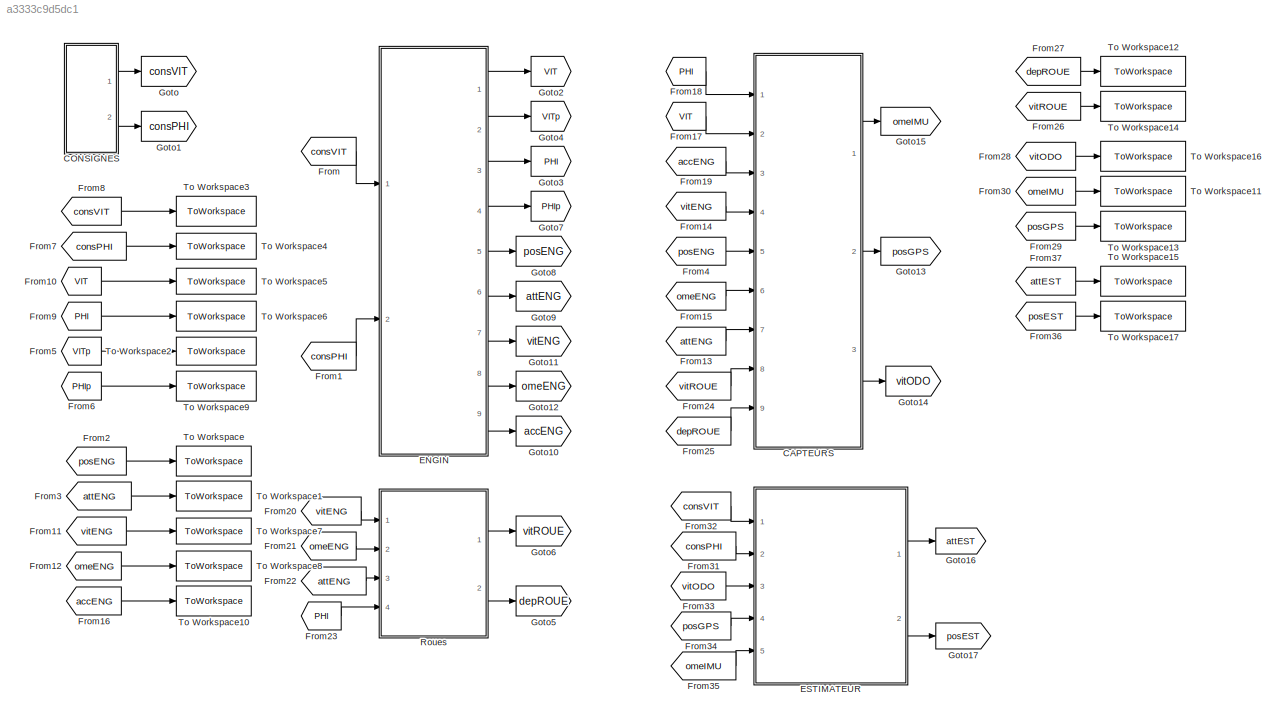
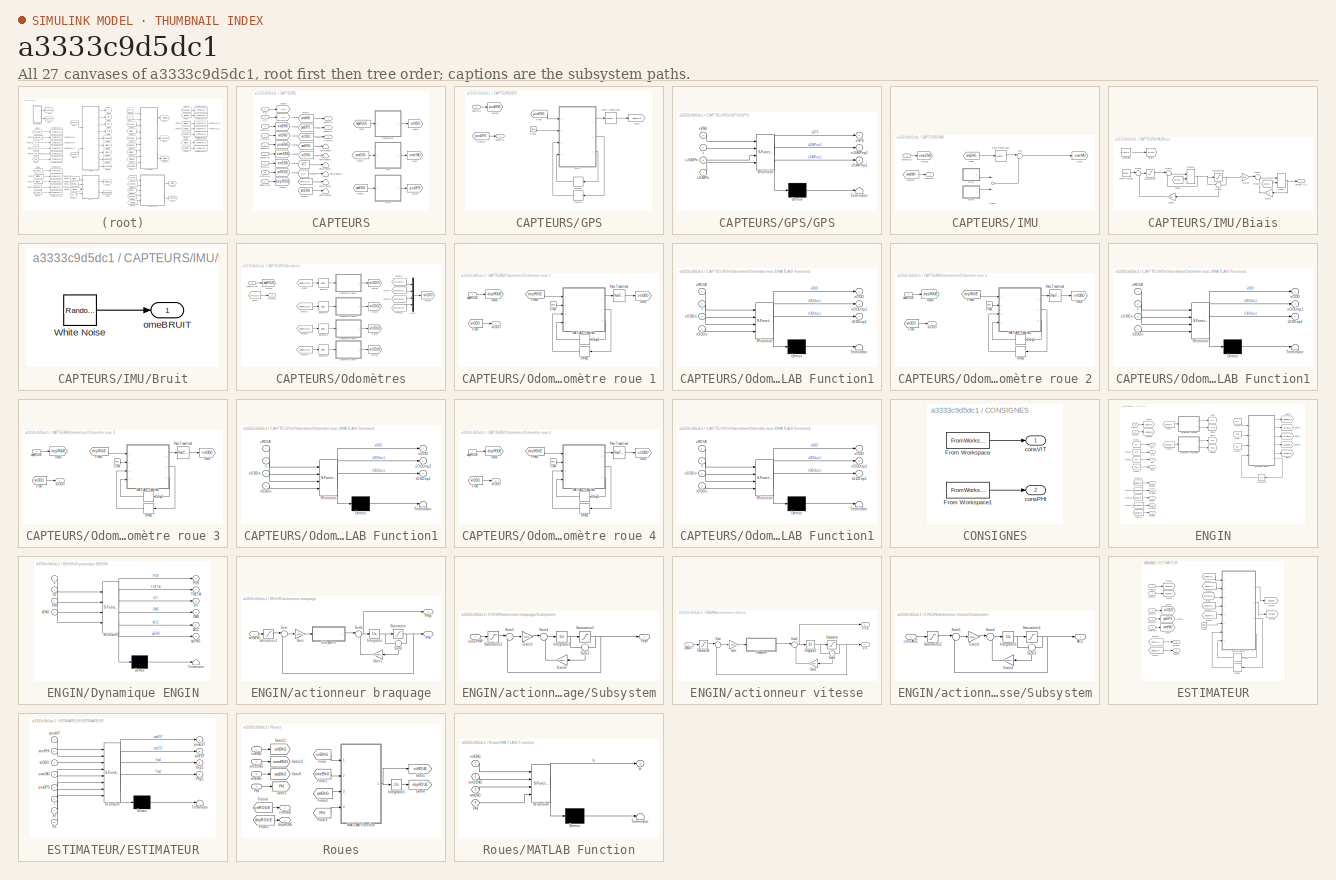
[diagram: thumbnail index - all 27 canvases of the model, root first then tree order]
MODEL slx_a3333c9d5dc1
KIND model
CONFIG AbsTol = auto
CONFIG FixedStep = auto
CONFIG MaxStep = auto
CONFIG MinStep = auto
CONFIG RelTol = 1e-3
CONFIG SampleTimeConstraint = Unconstrained
CONFIG Solver = VariableStepAuto
CONFIG SolverMode = Auto
CONFIG SolverName = VariableStepAuto
CONFIG StartTime = 0.0
CONFIG StopTime = paramSIM.T
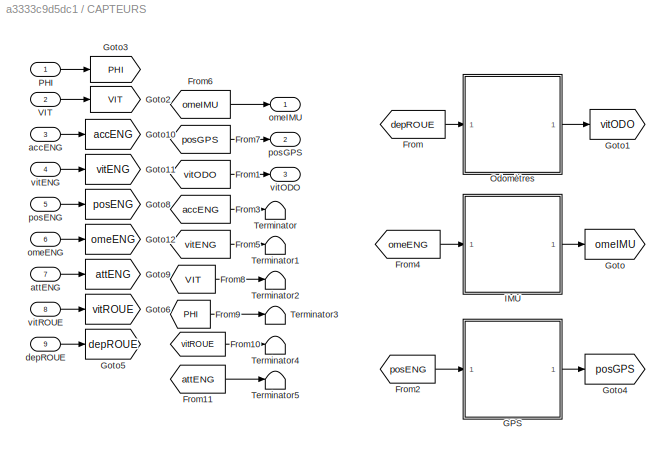
BLOCK [SubSystem] CAPTEURS
  Ports = [9, 3]
  RequestExecContextInheritance = off
  Variant = off
BLOCK [From] CAPTEURS/From
  GotoTag = depROUE
BLOCK [From] CAPTEURS/From1
  GotoTag = vitODO
BLOCK [From] CAPTEURS/From10
  GotoTag = vitROUE
BLOCK [From] CAPTEURS/From11
  GotoTag = attENG
BLOCK [From] CAPTEURS/From2
  GotoTag = posENG
BLOCK [From] CAPTEURS/From3
  GotoTag = accENG
BLOCK [From] CAPTEURS/From4
  GotoTag = omeENG
BLOCK [From] CAPTEURS/From5
  GotoTag = vitENG
BLOCK [From] CAPTEURS/From6
  GotoTag = omeIMU
BLOCK [From] CAPTEURS/From7
  GotoTag = posGPS
BLOCK [From] CAPTEURS/From8
  GotoTag = VIT
BLOCK [From] CAPTEURS/From9
  GotoTag = PHI
BLOCK [SubSystem] CAPTEURS/GPS
  Ports = [1, 1]
  RequestExecContextInheritance = off
  Variant = off
BLOCK [Clock] CAPTEURS/GPS/Clock
BLOCK [Delay] CAPTEURS/GPS/Delay1
  DelayLength = 1
  InitialCondition = zeros(2,1)
  InputPortMap = u0
  Ports = [1, 1]
  SampleTime = paramGPS.dt
BLOCK [Delay] CAPTEURS/GPS/Delay3
  DelayLength = 1
  InitialCondition = paramGPS.per_sau*rand
  InputPortMap = u0
  Ports = [1, 1]
  SampleTime = paramGPS.dt
BLOCK [From] CAPTEURS/GPS/From
  GotoTag = posENG
BLOCK [From] CAPTEURS/GPS/From14
  GotoTag = posGPS
BLOCK [SubSystem] CAPTEURS/GPS/GPS
  ErrorFcn = Stateflow.Translate.translate
  PermitHierarchicalResolution = ExplicitOnly
  Ports = [4, 3]
  RequestExecContextInheritance = off
  SFBlockType = MATLAB Function
  TreatAsAtomicUnit = on
  Variant = off
BLOCK [Demux] CAPTEURS/GPS/GPS/ Demux 
  Outputs = 1
  Ports = [1, 1]
BLOCK [S-Function] CAPTEURS/GPS/GPS/ SFunction 
  EnableBusSupport = on
  FunctionName = sf_sfun
  Parameters = paramGPS
  PortCounts = [4 4]
  Ports = [4, 4]
  SFunctionDeploymentMode = off
  Tag = Stateflow S-Function schemaSIM_4 8
BLOCK [Terminator] CAPTEURS/GPS/GPS/ Terminator 
BLOCK [Inport] CAPTEURS/GPS/GPS/t
  IconDisplay = Port number
  Port = 2
BLOCK [Inport] CAPTEURS/GPS/GPS/tJUMPn
  IconDisplay = Port number
  Port = 4
BLOCK [Outport] CAPTEURS/GPS/GPS/tJUMPnp1
  IconDisplay = Port number
  Port = 3
BLOCK [Inport] CAPTEURS/GPS/GPS/xENG
  IconDisplay = Port number
BLOCK [Outport] CAPTEURS/GPS/GPS/xGPS
  IconDisplay = Port number
BLOCK [Inport] CAPTEURS/GPS/GPS/xJUMPn
  IconDisplay = Port number
  Port = 3
BLOCK [Outport] CAPTEURS/GPS/GPS/xJUMPnp1
  IconDisplay = Port number
  Port = 2
BLOCK [Goto] CAPTEURS/GPS/Goto
  GotoTag = posGPS
BLOCK [Goto] CAPTEURS/GPS/Goto12
  GotoTag = posENG
BLOCK [RateTransition] CAPTEURS/GPS/Rate Transition2
  OutPortSampleTime = paramGPS.dt
BLOCK [Inport] CAPTEURS/GPS/posENG
  IconDisplay = Port number
BLOCK [Outport] CAPTEURS/GPS/posGPS
  IconDisplay = Port number
BLOCK [Goto] CAPTEURS/Goto
  GotoTag = omeIMU
BLOCK [Goto] CAPTEURS/Goto1
  GotoTag = vitODO
BLOCK [Goto] CAPTEURS/Goto10
  GotoTag = accENG
BLOCK [Goto] CAPTEURS/Goto11
  GotoTag = vitENG
BLOCK [Goto] CAPTEURS/Goto12
  GotoTag = omeENG
BLOCK [Goto] CAPTEURS/Goto2
  GotoTag = VIT
BLOCK [Goto] CAPTEURS/Goto3
  GotoTag = PHI
BLOCK [Goto] CAPTEURS/Goto4
  GotoTag = posGPS
BLOCK [Goto] CAPTEURS/Goto5
  GotoTag = depROUE
BLOCK [Goto] CAPTEURS/Goto6
  GotoTag = vitROUE
BLOCK [Goto] CAPTEURS/Goto8
  GotoTag = posENG
BLOCK [Goto] CAPTEURS/Goto9
  GotoTag = attENG
BLOCK [SubSystem] CAPTEURS/IMU
  Ports = [1, 1]
  RequestExecContextInheritance = off
  Variant = off
BLOCK [SubSystem] CAPTEURS/IMU/Biais
  Ports = [0, 1]
  RequestExecContextInheritance = off
  Variant = off
BLOCK [Constant] CAPTEURS/IMU/Biais/Constant
  Value = (2*rand-1)*paramIMU.biais_ome*pi/180
BLOCK [Delay] CAPTEURS/IMU/Biais/Delay
  DelayLength = 1
  InitialCondition = 0
  InitialConditionSource = Input port
  InputPortMap = u0,p4
  Ports = [2, 1]
BLOCK [Delay] CAPTEURS/IMU/Biais/Delay2
  DelayLength = 1
  InitialCondition = 0
  InitialConditionSource = Input port
  InputPortMap = u0,p4
  Ports = [2, 1]
BLOCK [From] CAPTEURS/IMU/Biais/From
  GotoTag = Biais
BLOCK [From] CAPTEURS/IMU/Biais/From1
  GotoTag = Biais
BLOCK [Gain] CAPTEURS/IMU/Biais/Gain1
  Gain = exp(-0.01)
  OutDataTypeStr = Inherit: Inherit via internal rule
  ParamDataTypeStr = Inherit: Inherit via internal rule
  SaturateOnIntegerOverflow = off
BLOCK [Gain] CAPTEURS/IMU/Biais/Gain2
  Gain = 1-exp(-1/10)
  OutDataTypeStr = Inherit: Inherit via internal rule
  ParamDataTypeStr = Inherit: Inherit via internal rule
  SaturateOnIntegerOverflow = off
BLOCK [Gain] CAPTEURS/IMU/Biais/Gain3
  Gain = 1-exp(-0.01)
  OutDataTypeStr = Inherit: Inherit via internal rule
  ParamDataTypeStr = Inherit: Inherit via internal rule
  SaturateOnIntegerOverflow = off
BLOCK [Saturate] CAPTEURS/IMU/Biais/Saturation1
  InputPortMap = u0
  LowerLimit = -paramIMU.biais_ome*pi/180
  Ports = [1, 1]
  UpperLimit = paramIMU.biais_ome*pi/180
BLOCK [Saturate] CAPTEURS/IMU/Biais/Saturation7
  InputPortMap = u0
  LowerLimit = -paramIMU.deriv_ome*pi/180*paramIMU.dt
  Ports = [1, 1]
  UpperLimit = paramIMU.deriv_ome*pi/180*paramIMU.dt
BLOCK [Sum] CAPTEURS/IMU/Biais/Sum1
  IconShape = round
  InputSameDT = off
  Inputs = |++
  OutDataTypeStr = Inherit: Inherit via internal rule
  Ports = [2, 1]
  SaturateOnIntegerOverflow = off
BLOCK [Sum] CAPTEURS/IMU/Biais/Sum3
  IconShape = round
  InputSameDT = off
  Inputs = +|-
  OutDataTypeStr = Inherit: Inherit via internal rule
  Ports = [2, 1]
  SaturateOnIntegerOverflow = off
BLOCK [Sum] CAPTEURS/IMU/Biais/Sum4
  IconShape = round
  InputSameDT = off
  Inputs = |+-
  OutDataTypeStr = Inherit: Inherit via internal rule
  Ports = [2, 1]
  SaturateOnIntegerOverflow = off
BLOCK [Sum] CAPTEURS/IMU/Biais/Sum8
  IconShape = round
  InputSameDT = off
  Inputs = |++
  OutDataTypeStr = Inherit: Inherit via internal rule
  Ports = [2, 1]
  SaturateOnIntegerOverflow = off
BLOCK [RandomNumber] CAPTEURS/IMU/Biais/White Noise1
  DisableCoverage = on
  SampleTime = paramIMU.dt
  Variance = 0.995*(paramIMU.biais_ome*pi/180/3)^2
BLOCK [Goto] CAPTEURS/IMU/Biais/biais
  GotoTag = Biais
BLOCK [Outport] CAPTEURS/IMU/Biais/omeBIAIS
  IconDisplay = Port number
BLOCK [SubSystem] CAPTEURS/IMU/Bruit
  Ports = [0, 1]
  RequestExecContextInheritance = off
  Variant = off
BLOCK [RandomNumber] CAPTEURS/IMU/Bruit/White Noise
  DisableCoverage = on
  SampleTime = paramIMU.dt
  Variance = (paramIMU.sig_ome*pi/180)^2
BLOCK [Outport] CAPTEURS/IMU/Bruit/omeBRUIT
  IconDisplay = Port number
BLOCK [From] CAPTEURS/IMU/From
  GotoTag = omeENG
BLOCK [From] CAPTEURS/IMU/From14
  GotoTag = omeIMU
BLOCK [Goto] CAPTEURS/IMU/Goto
  GotoTag = omeIMU
BLOCK [Goto] CAPTEURS/IMU/Goto12
  GotoTag = omeENG
BLOCK [RateTransition] CAPTEURS/IMU/Rate Transition1
  OutPortSampleTime = paramIMU.dt
BLOCK [Sum] CAPTEURS/IMU/Sum
  IconShape = round
  InputSameDT = off
  Inputs = |++
  OutDataTypeStr = Inherit: Inherit via internal rule
  Ports = [2, 1]
  SaturateOnIntegerOverflow = off
BLOCK [Sum] CAPTEURS/IMU/Sum1
  InputSameDT = off
  OutDataTypeStr = Inherit: Inherit via internal rule
  Ports = [2, 1]
  SaturateOnIntegerOverflow = off
BLOCK [Inport] CAPTEURS/IMU/omeENG
  IconDisplay = Port number
BLOCK [Outport] CAPTEURS/IMU/omeIMU
  IconDisplay = Port number
BLOCK [SubSystem] CAPTEURS/Odomètres
  Ports = [1, 1]
  RequestExecContextInheritance = off
  Variant = off
BLOCK [From] CAPTEURS/Odomètres/From
  GotoTag = vitODO
BLOCK [From] CAPTEURS/Odomètres/From10
  GotoTag = vitODO4
BLOCK [From] CAPTEURS/Odomètres/From11
  GotoTag = depROUE
BLOCK [From] CAPTEURS/Odomètres/From12
  GotoTag = depROUE
BLOCK [From] CAPTEURS/Odomètres/From13
  GotoTag = depROUE
BLOCK [From] CAPTEURS/Odomètres/From2
  GotoTag = depROUE
BLOCK [From] CAPTEURS/Odomètres/From4
  GotoTag = vitODO1
BLOCK [From] CAPTEURS/Odomètres/From7
  GotoTag = vitODO2
BLOCK [From] CAPTEURS/Odomètres/From9
  GotoTag = vitODO3
BLOCK [Goto] CAPTEURS/Odomètres/Goto11
  GotoTag = vitODO4
BLOCK [Goto] CAPTEURS/Odomètres/Goto3
  GotoTag = vitODO1
BLOCK [Goto] CAPTEURS/Odomètres/Goto5
  GotoTag = depROUE
BLOCK [Goto] CAPTEURS/Odomètres/Goto6
  GotoTag = vitODO
BLOCK [Goto] CAPTEURS/Odomètres/Goto7
  GotoTag = vitODO2
BLOCK [Goto] CAPTEURS/Odomètres/Goto9
  GotoTag = vitODO3
BLOCK [Mux] CAPTEURS/Odomètres/Mux1
  DisplayOption = bar
  Ports = [4, 1]
BLOCK [SubSystem] CAPTEURS/Odomètres/Odomètre roue 1
  Ports = [1, 1]
  RequestExecContextInheritance = off
  Variant = off
BLOCK [Clock] CAPTEURS/Odomètres/Odomètre roue 1/Clock
BLOCK [Delay] CAPTEURS/Odomètres/Odomètre roue 1/Delay1
  DelayLength = 1
  InitialCondition = 0
  InputPortMap = u0
  Ports = [1, 1]
  SampleTime = paramODO.dt
BLOCK [Delay] CAPTEURS/Odomètres/Odomètre roue 1/Delay3
  DelayLength = 1
  InitialCondition = 0
  InputPortMap = u0
  Ports = [1, 1]
  SampleTime = paramODO.dt
BLOCK [From] CAPTEURS/Odomètres/Odomètre roue 1/From
  GotoTag = vitODO
BLOCK [From] CAPTEURS/Odomètres/Odomètre roue 1/From2
  GotoTag = depROUE
BLOCK [Goto] CAPTEURS/Odomètres/Odomètre roue 1/Goto1
  GotoTag = vitODO
BLOCK [Goto] CAPTEURS/Odomètres/Odomètre roue 1/Goto5
  GotoTag = depROUE
BLOCK [SubSystem] CAPTEURS/Odomètres/Odomètre roue 1/MATLAB Function1
  ErrorFcn = Stateflow.Translate.translate
  PermitHierarchicalResolution = ExplicitOnly
  Ports = [4, 3]
  RequestExecContextInheritance = off
  SFBlockType = MATLAB Function
  TreatAsAtomicUnit = on
  Variant = off
BLOCK [Demux] CAPTEURS/Odomètres/Odomètre roue 1/MATLAB Function1/ Demux 
  Outputs = 1
  Ports = [1, 1]
BLOCK [S-Function] CAPTEURS/Odomètres/Odomètre roue 1/MATLAB Function1/ SFunction 
  EnableBusSupport = on
  FunctionName = sf_sfun
  Parameters = paramODO
  PortCounts = [4 4]
  Ports = [4, 4]
  SFunctionDeploymentMode = off
  Tag = Stateflow S-Function schemaSIM_4 2
BLOCK [Terminator] CAPTEURS/Odomètres/Odomètre roue 1/MATLAB Function1/ Terminator 
BLOCK [Inport] CAPTEURS/Odomètres/Odomètre roue 1/MATLAB Function1/t
  IconDisplay = Port number
  Port = 2
BLOCK [Inport] CAPTEURS/Odomètres/Odomètre roue 1/MATLAB Function1/tODOn
  IconDisplay = Port number
  Port = 4
BLOCK [Outport] CAPTEURS/Odomètres/Odomètre roue 1/MATLAB Function1/tODOnp1
  IconDisplay = Port number
  Port = 3
BLOCK [Outport] CAPTEURS/Odomètres/Odomètre roue 1/MATLAB Function1/vODO
  IconDisplay = Port number
BLOCK [Inport] CAPTEURS/Odomètres/Odomètre roue 1/MATLAB Function1/xODOn
  IconDisplay = Port number
  Port = 3
BLOCK [Outport] CAPTEURS/Odomètres/Odomètre roue 1/MATLAB Function1/xODOnp1
  IconDisplay = Port number
  Port = 2
BLOCK [Inport] CAPTEURS/Odomètres/Odomètre roue 1/MATLAB Function1/xROUE
  IconDisplay = Port number
BLOCK [RateTransition] CAPTEURS/Odomètres/Odomètre roue 1/Rate Transition1
  OutPortSampleTime = paramODO.dt
BLOCK [Inport] CAPTEURS/Odomètres/Odomètre roue 1/depROUE
  IconDisplay = Port number
BLOCK [Outport] CAPTEURS/Odomètres/Odomètre roue 1/vitODO
  IconDisplay = Port number
BLOCK [SubSystem] CAPTEURS/Odomètres/Odomètre roue 2
  Ports = [1, 1]
  RequestExecContextInheritance = off
  Variant = off
BLOCK [Clock] CAPTEURS/Odomètres/Odomètre roue 2/Clock
BLOCK [Delay] CAPTEURS/Odomètres/Odomètre roue 2/Delay1
  DelayLength = 1
  InitialCondition = 0
  InputPortMap = u0
  Ports = [1, 1]
  SampleTime = paramODO.dt
BLOCK [Delay] CAPTEURS/Odomètres/Odomètre roue 2/Delay3
  DelayLength = 1
  InitialCondition = 0
  InputPortMap = u0
  Ports = [1, 1]
  SampleTime = paramODO.dt
BLOCK [From] CAPTEURS/Odomètres/Odomètre roue 2/From
  GotoTag = vitODO
BLOCK [From] CAPTEURS/Odomètres/Odomètre roue 2/From2
  GotoTag = depROUE
BLOCK [Goto] CAPTEURS/Odomètres/Odomètre roue 2/Goto1
  GotoTag = vitODO
BLOCK [Goto] CAPTEURS/Odomètres/Odomètre roue 2/Goto5
  GotoTag = depROUE
BLOCK [SubSystem] CAPTEURS/Odomètres/Odomètre roue 2/MATLAB Function1
  ErrorFcn = Stateflow.Translate.translate
  PermitHierarchicalResolution = ExplicitOnly
  Ports = [4, 3]
  RequestExecContextInheritance = off
  SFBlockType = MATLAB Function
  TreatAsAtomicUnit = on
  Variant = off
BLOCK [Demux] CAPTEURS/Odomètres/Odomètre roue 2/MATLAB Function1/ Demux 
  Outputs = 1
  Ports = [1, 1]
BLOCK [S-Function] CAPTEURS/Odomètres/Odomètre roue 2/MATLAB Function1/ SFunction 
  EnableBusSupport = on
  FunctionName = sf_sfun
  Parameters = paramODO
  PortCounts = [4 4]
  Ports = [4, 4]
  SFunctionDeploymentMode = off
  Tag = Stateflow S-Function schemaSIM_4 1
BLOCK [Terminator] CAPTEURS/Odomètres/Odomètre roue 2/MATLAB Function1/ Terminator 
BLOCK [Inport] CAPTEURS/Odomètres/Odomètre roue 2/MATLAB Function1/t
  IconDisplay = Port number
  Port = 2
BLOCK [Inport] CAPTEURS/Odomètres/Odomètre roue 2/MATLAB Function1/tODOn
  IconDisplay = Port number
  Port = 4
BLOCK [Outport] CAPTEURS/Odomètres/Odomètre roue 2/MATLAB Function1/tODOnp1
  IconDisplay = Port number
  Port = 3
BLOCK [Outport] CAPTEURS/Odomètres/Odomètre roue 2/MATLAB Function1/vODO
  IconDisplay = Port number
BLOCK [Inport] CAPTEURS/Odomètres/Odomètre roue 2/MATLAB Function1/xODOn
  IconDisplay = Port number
  Port = 3
BLOCK [Outport] CAPTEURS/Odomètres/Odomètre roue 2/MATLAB Function1/xODOnp1
  IconDisplay = Port number
  Port = 2
BLOCK [Inport] CAPTEURS/Odomètres/Odomètre roue 2/MATLAB Function1/xROUE
  IconDisplay = Port number
BLOCK [RateTransition] CAPTEURS/Odomètres/Odomètre roue 2/Rate Transition1
  OutPortSampleTime = paramODO.dt
BLOCK [Inport] CAPTEURS/Odomètres/Odomètre roue 2/depROUE
  IconDisplay = Port number
BLOCK [Outport] CAPTEURS/Odomètres/Odomètre roue 2/vitODO
  IconDisplay = Port number
BLOCK [SubSystem] CAPTEURS/Odomètres/Odomètre roue 3
  Ports = [1, 1]
  RequestExecContextInheritance = off
  Variant = off
BLOCK [Clock] CAPTEURS/Odomètres/Odomètre roue 3/Clock
BLOCK [Delay] CAPTEURS/Odomètres/Odomètre roue 3/Delay1
  DelayLength = 1
  InitialCondition = 0
  InputPortMap = u0
  Ports = [1, 1]
  SampleTime = paramODO.dt
BLOCK [Delay] CAPTEURS/Odomètres/Odomètre roue 3/Delay3
  DelayLength = 1
  InitialCondition = 0
  InputPortMap = u0
  Ports = [1, 1]
  SampleTime = paramODO.dt
BLOCK [From] CAPTEURS/Odomètres/Odomètre roue 3/From
  GotoTag = vitODO
BLOCK [From] CAPTEURS/Odomètres/Odomètre roue 3/From2
  GotoTag = depROUE
BLOCK [Goto] CAPTEURS/Odomètres/Odomètre roue 3/Goto1
  GotoTag = vitODO
BLOCK [Goto] CAPTEURS/Odomètres/Odomètre roue 3/Goto5
  GotoTag = depROUE
BLOCK [SubSystem] CAPTEURS/Odomètres/Odomètre roue 3/MATLAB Function1
  ErrorFcn = Stateflow.Translate.translate
  PermitHierarchicalResolution = ExplicitOnly
  Ports = [4, 3]
  RequestExecContextInheritance = off
  SFBlockType = MATLAB Function
  TreatAsAtomicUnit = on
  Variant = off
BLOCK [Demux] CAPTEURS/Odomètres/Odomètre roue 3/MATLAB Function1/ Demux 
  Outputs = 1
  Ports = [1, 1]
BLOCK [S-Function] CAPTEURS/Odomètres/Odomètre roue 3/MATLAB Function1/ SFunction 
  EnableBusSupport = on
  FunctionName = sf_sfun
  Parameters = paramODO
  PortCounts = [4 4]
  Ports = [4, 4]
  SFunctionDeploymentMode = off
  Tag = Stateflow S-Function schemaSIM_4 4
BLOCK [Terminator] CAPTEURS/Odomètres/Odomètre roue 3/MATLAB Function1/ Terminator 
BLOCK [Inport] CAPTEURS/Odomètres/Odomètre roue 3/MATLAB Function1/t
  IconDisplay = Port number
  Port = 2
BLOCK [Inport] CAPTEURS/Odomètres/Odomètre roue 3/MATLAB Function1/tODOn
  IconDisplay = Port number
  Port = 4
BLOCK [Outport] CAPTEURS/Odomètres/Odomètre roue 3/MATLAB Function1/tODOnp1
  IconDisplay = Port number
  Port = 3
BLOCK [Outport] CAPTEURS/Odomètres/Odomètre roue 3/MATLAB Function1/vODO
  IconDisplay = Port number
BLOCK [Inport] CAPTEURS/Odomètres/Odomètre roue 3/MATLAB Function1/xODOn
  IconDisplay = Port number
  Port = 3
BLOCK [Outport] CAPTEURS/Odomètres/Odomètre roue 3/MATLAB Function1/xODOnp1
  IconDisplay = Port number
  Port = 2
BLOCK [Inport] CAPTEURS/Odomètres/Odomètre roue 3/MATLAB Function1/xROUE
  IconDisplay = Port number
BLOCK [RateTransition] CAPTEURS/Odomètres/Odomètre roue 3/Rate Transition1
  OutPortSampleTime = paramODO.dt
BLOCK [Inport] CAPTEURS/Odomètres/Odomètre roue 3/depROUE
  IconDisplay = Port number
BLOCK [Outport] CAPTEURS/Odomètres/Odomètre roue 3/vitODO
  IconDisplay = Port number
BLOCK [SubSystem] CAPTEURS/Odomètres/Odomètre roue 4
  Ports = [1, 1]
  RequestExecContextInheritance = off
  Variant = off
BLOCK [Clock] CAPTEURS/Odomètres/Odomètre roue 4/Clock
BLOCK [Delay] CAPTEURS/Odomètres/Odomètre roue 4/Delay1
  DelayLength = 1
  InitialCondition = 0
  InputPortMap = u0
  Ports = [1, 1]
  SampleTime = paramODO.dt
BLOCK [Delay] CAPTEURS/Odomètres/Odomètre roue 4/Delay3
  DelayLength = 1
  InitialCondition = 0
  InputPortMap = u0
  Ports = [1, 1]
  SampleTime = paramODO.dt
BLOCK [From] CAPTEURS/Odomètres/Odomètre roue 4/From
  GotoTag = vitODO
BLOCK [From] CAPTEURS/Odomètres/Odomètre roue 4/From2
  GotoTag = depROUE
BLOCK [Goto] CAPTEURS/Odomètres/Odomètre roue 4/Goto1
  GotoTag = vitODO
BLOCK [Goto] CAPTEURS/Odomètres/Odomètre roue 4/Goto5
  GotoTag = depROUE
BLOCK [SubSystem] CAPTEURS/Odomètres/Odomètre roue 4/MATLAB Function1
  ErrorFcn = Stateflow.Translate.translate
  PermitHierarchicalResolution = ExplicitOnly
  Ports = [4, 3]
  RequestExecContextInheritance = off
  SFBlockType = MATLAB Function
  TreatAsAtomicUnit = on
  Variant = off
BLOCK [Demux] CAPTEURS/Odomètres/Odomètre roue 4/MATLAB Function1/ Demux 
  Outputs = 1
  Ports = [1, 1]
BLOCK [S-Function] CAPTEURS/Odomètres/Odomètre roue 4/MATLAB Function1/ SFunction 
  EnableBusSupport = on
  FunctionName = sf_sfun
  Parameters = paramODO
  PortCounts = [4 4]
  Ports = [4, 4]
  SFunctionDeploymentMode = off
  Tag = Stateflow S-Function schemaSIM_4 5
BLOCK [Terminator] CAPTEURS/Odomètres/Odomètre roue 4/MATLAB Function1/ Terminator 
BLOCK [Inport] CAPTEURS/Odomètres/Odomètre roue 4/MATLAB Function1/t
  IconDisplay = Port number
  Port = 2
BLOCK [Inport] CAPTEURS/Odomètres/Odomètre roue 4/MATLAB Function1/tODOn
  IconDisplay = Port number
  Port = 4
BLOCK [Outport] CAPTEURS/Odomètres/Odomètre roue 4/MATLAB Function1/tODOnp1
  IconDisplay = Port number
  Port = 3
BLOCK [Outport] CAPTEURS/Odomètres/Odomètre roue 4/MATLAB Function1/vODO
  IconDisplay = Port number
BLOCK [Inport] CAPTEURS/Odomètres/Odomètre roue 4/MATLAB Function1/xODOn
  IconDisplay = Port number
  Port = 3
BLOCK [Outport] CAPTEURS/Odomètres/Odomètre roue 4/MATLAB Function1/xODOnp1
  IconDisplay = Port number
  Port = 2
BLOCK [Inport] CAPTEURS/Odomètres/Odomètre roue 4/MATLAB Function1/xROUE
  IconDisplay = Port number
BLOCK [RateTransition] CAPTEURS/Odomètres/Odomètre roue 4/Rate Transition1
  OutPortSampleTime = paramODO.dt
BLOCK [Inport] CAPTEURS/Odomètres/Odomètre roue 4/depROUE
  IconDisplay = Port number
BLOCK [Outport] CAPTEURS/Odomètres/Odomètre roue 4/vitODO
  IconDisplay = Port number
BLOCK [Selector] CAPTEURS/Odomètres/Selector
  IndexOptions = Index vector (dialog)
  Indices = [1]
  InputPortWidth = 4
  OutputSizes = 1
  Ports = [1, 1]
BLOCK [Selector] CAPTEURS/Odomètres/Selector1
  IndexOptions = Index vector (dialog)
  Indices = [2]
  InputPortWidth = 4
  OutputSizes = 1
  Ports = [1, 1]
BLOCK [Selector] CAPTEURS/Odomètres/Selector2
  IndexOptions = Index vector (dialog)
  Indices = [3]
  InputPortWidth = 4
  OutputSizes = 1
  Ports = [1, 1]
BLOCK [Selector] CAPTEURS/Odomètres/Selector3
  IndexOptions = Index vector (dialog)
  Indices = [4]
  InputPortWidth = 4
  OutputSizes = 1
  Ports = [1, 1]
BLOCK [Inport] CAPTEURS/Odomètres/depROUE
  IconDisplay = Port number
BLOCK [Outport] CAPTEURS/Odomètres/vitODO
  IconDisplay = Port number
BLOCK [Inport] CAPTEURS/PHI
  IconDisplay = Port number
BLOCK [Terminator] CAPTEURS/Terminator
BLOCK [Terminator] CAPTEURS/Terminator1
BLOCK [Terminator] CAPTEURS/Terminator2
BLOCK [Terminator] CAPTEURS/Terminator3
BLOCK [Terminator] CAPTEURS/Terminator4
BLOCK [Terminator] CAPTEURS/Terminator5
BLOCK [Inport] CAPTEURS/VIT
  IconDisplay = Port number
  Port = 2
BLOCK [Inport] CAPTEURS/accENG
  IconDisplay = Port number
  Port = 3
BLOCK [Inport] CAPTEURS/attENG
  IconDisplay = Port number
  Port = 7
BLOCK [Inport] CAPTEURS/depROUE
  IconDisplay = Port number
  Port = 9
BLOCK [Inport] CAPTEURS/omeENG
  IconDisplay = Port number
  Port = 6
BLOCK [Outport] CAPTEURS/omeIMU
  IconDisplay = Port number
BLOCK [Inport] CAPTEURS/posENG
  IconDisplay = Port number
  Port = 5
BLOCK [Outport] CAPTEURS/posGPS
  IconDisplay = Port number
  Port = 2
BLOCK [Inport] CAPTEURS/vitENG
  IconDisplay = Port number
  Port = 4
BLOCK [Outport] CAPTEURS/vitODO
  IconDisplay = Port number
  Port = 3
BLOCK [Inport] CAPTEURS/vitROUE
  IconDisplay = Port number
  Port = 8
BLOCK [SubSystem] CONSIGNES
  Ports = [0, 2]
  RequestExecContextInheritance = off
  Variant = off
BLOCK [FromWorkspace] CONSIGNES/From Workspace
  Interpolate = off
  OutputAfterFinalValue = Holding final value
  SampleTime = 0
  VariableName = IN_consVIT
  ZeroCross = on
BLOCK [FromWorkspace] CONSIGNES/From Workspace1
  Interpolate = off
  OutputAfterFinalValue = Holding final value
  SampleTime = 0
  VariableName = IN_consPHI
  ZeroCross = on
BLOCK [Outport] CONSIGNES/consPHI
  IconDisplay = Port number
  Port = 2
BLOCK [Outport] CONSIGNES/consVIT
  IconDisplay = Port number
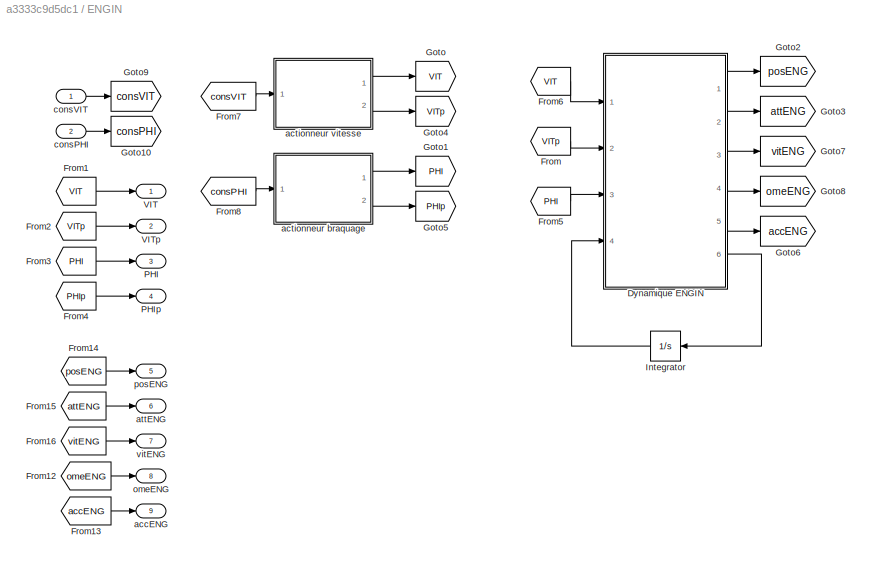
BLOCK [SubSystem] ENGIN
  Ports = [2, 9]
  RequestExecContextInheritance = off
  Variant = off
BLOCK [SubSystem] ENGIN/Dynamique ENGIN
  ErrorFcn = Stateflow.Translate.translate
  PermitHierarchicalResolution = ExplicitOnly
  Ports = [4, 6]
  RequestExecContextInheritance = off
  SFBlockType = MATLAB Function
  TreatAsAtomicUnit = on
  Variant = off
BLOCK [Demux] ENGIN/Dynamique ENGIN/ Demux 
  Outputs = 1
  Ports = [1, 1]
BLOCK [S-Function] ENGIN/Dynamique ENGIN/ SFunction 
  EnableBusSupport = on
  FunctionName = sf_sfun
  Parameters = paramENG
  PortCounts = [4 7]
  Ports = [4, 7]
  SFunctionDeploymentMode = off
  Tag = Stateflow S-Function schemaSIM_4 3
BLOCK [Terminator] ENGIN/Dynamique ENGIN/ Terminator 
BLOCK [Outport] ENGIN/Dynamique ENGIN/ACC
  IconDisplay = Port number
  Port = 5
BLOCK [Outport] ENGIN/Dynamique ENGIN/OME
  IconDisplay = Port number
  Port = 4
BLOCK [Inport] ENGIN/Dynamique ENGIN/PHI
  IconDisplay = Port number
  Port = 3
BLOCK [Outport] ENGIN/Dynamique ENGIN/POS
  IconDisplay = Port number
BLOCK [Outport] ENGIN/Dynamique ENGIN/THETA
  IconDisplay = Port number
  Port = 2
BLOCK [Inport] ENGIN/Dynamique ENGIN/V
  IconDisplay = Port number
BLOCK [Outport] ENGIN/Dynamique ENGIN/VIT
  IconDisplay = Port number
  Port = 3
BLOCK [Inport] ENGIN/Dynamique ENGIN/Vp
  IconDisplay = Port number
  Port = 2
BLOCK [Inport] ENGIN/Dynamique ENGIN/xENG
  IconDisplay = Port number
  Port = 4
BLOCK [Outport] ENGIN/Dynamique ENGIN/xpENG
  IconDisplay = Port number
  Port = 6
BLOCK [From] ENGIN/From
  GotoTag = VITp
BLOCK [From] ENGIN/From1
  GotoTag = VIT
BLOCK [From] ENGIN/From12
  GotoTag = omeENG
BLOCK [From] ENGIN/From13
  GotoTag = accENG
BLOCK [From] ENGIN/From14
  GotoTag = posENG
BLOCK [From] ENGIN/From15
  GotoTag = attENG
BLOCK [From] ENGIN/From16
  GotoTag = vitENG
BLOCK [From] ENGIN/From2
  GotoTag = VITp
BLOCK [From] ENGIN/From3
  GotoTag = PHI
BLOCK [From] ENGIN/From4
  GotoTag = PHIp
BLOCK [From] ENGIN/From5
  GotoTag = PHI
BLOCK [From] ENGIN/From6
  GotoTag = VIT
BLOCK [From] ENGIN/From7
  GotoTag = consVIT
BLOCK [From] ENGIN/From8
  GotoTag = consPHI
BLOCK [Goto] ENGIN/Goto
  GotoTag = VIT
BLOCK [Goto] ENGIN/Goto1
  GotoTag = PHI
BLOCK [Goto] ENGIN/Goto10
  GotoTag = consPHI
BLOCK [Goto] ENGIN/Goto2
  GotoTag = posENG
BLOCK [Goto] ENGIN/Goto3
  GotoTag = attENG
BLOCK [Goto] ENGIN/Goto4
  GotoTag = VITp
BLOCK [Goto] ENGIN/Goto5
  GotoTag = PHIp
BLOCK [Goto] ENGIN/Goto6
  GotoTag = accENG
BLOCK [Goto] ENGIN/Goto7
  GotoTag = vitENG
BLOCK [Goto] ENGIN/Goto8
  GotoTag = omeENG
BLOCK [Goto] ENGIN/Goto9
  GotoTag = consVIT
BLOCK [Integrator] ENGIN/Integrator
  InitialCondition = initENG.x
  Ports = [1, 1]
BLOCK [Outport] ENGIN/PHI
  IconDisplay = Port number
  Port = 3
BLOCK [Outport] ENGIN/PHIp
  IconDisplay = Port number
  Port = 4
BLOCK [Outport] ENGIN/VIT
  IconDisplay = Port number
BLOCK [Outport] ENGIN/VITp
  IconDisplay = Port number
  Port = 2
BLOCK [Outport] ENGIN/accENG
  IconDisplay = Port number
  Port = 9
BLOCK [SubSystem] ENGIN/actionneur braquage
  Ports = [1, 2]
  RequestExecContextInheritance = off
  Variant = off
BLOCK [Gain] ENGIN/actionneur braquage/Gain
  Gain = 1/(paramENG.tauPHI*1.5)
  OutDataTypeStr = Inherit: Inherit via internal rule
  ParamDataTypeStr = Inherit: Inherit via internal rule
  SaturateOnIntegerOverflow = off
BLOCK [Gain] ENGIN/actionneur braquage/Gain1
  Gain = 5/(paramENG.tauPHI*1.5)
  OutDataTypeStr = Inherit: Inherit via internal rule
  ParamDataTypeStr = Inherit: Inherit via internal rule
  SaturateOnIntegerOverflow = off
BLOCK [Integrator] ENGIN/actionneur braquage/Integrator
  InitialCondition = initENG.PHI
  Ports = [1, 1]
BLOCK [Outport] ENGIN/actionneur braquage/PHI
  IconDisplay = Port number
BLOCK [Outport] ENGIN/actionneur braquage/PHIp
  IconDisplay = Port number
  Port = 2
BLOCK [Saturate] ENGIN/actionneur braquage/Saturation
  InputPortMap = u0
  LowerLimit = -paramENG.maxPHI
  Ports = [1, 1]
  UpperLimit = paramENG.maxPHI
BLOCK [Saturate] ENGIN/actionneur braquage/Saturation1
  InputPortMap = u0
  LowerLimit = -paramENG.maxPHI
  Ports = [1, 1]
  UpperLimit = paramENG.maxPHI
BLOCK [SubSystem] ENGIN/actionneur braquage/Subsystem
  Ports = [1, 1]
  RequestExecContextInheritance = off
  Variant = off
BLOCK [Gain] ENGIN/actionneur braquage/Subsystem/Gain2
  Gain = 5/(paramENG.tauPHI/1.5)
  OutDataTypeStr = Inherit: Inherit via internal rule
  ParamDataTypeStr = Inherit: Inherit via internal rule
  SaturateOnIntegerOverflow = off
BLOCK [Gain] ENGIN/actionneur braquage/Subsystem/Gain3
  Gain = 1/(paramENG.tauPHI/1.5)
  OutDataTypeStr = Inherit: Inherit via internal rule
  ParamDataTypeStr = Inherit: Inherit via internal rule
  SaturateOnIntegerOverflow = off
BLOCK [Integrator] ENGIN/actionneur braquage/Subsystem/Integrator1
  Ports = [1, 1]
BLOCK [Outport] ENGIN/actionneur braquage/Subsystem/PHIP
  IconDisplay = Port number
BLOCK [Saturate] ENGIN/actionneur braquage/Subsystem/Saturation1
  InputPortMap = u0
  LowerLimit = -paramENG.maxPHIP
  Ports = [1, 1]
  UpperLimit = paramENG.maxPHIP
BLOCK [Saturate] ENGIN/actionneur braquage/Subsystem/Saturation2
  InputPortMap = u0
  LowerLimit = -paramENG.maxPHIP
  Ports = [1, 1]
  UpperLimit = paramENG.maxPHIP
BLOCK [Sum] ENGIN/actionneur braquage/Subsystem/Sum3
  IconShape = round
  InputSameDT = off
  Inputs = +|-
  OutDataTypeStr = Inherit: Inherit via internal rule
  Ports = [2, 1]
  SaturateOnIntegerOverflow = off
BLOCK [Sum] ENGIN/actionneur braquage/Subsystem/Sum4
  IconShape = round
  InputSameDT = off
  Inputs = |+-
  OutDataTypeStr = Inherit: Inherit via internal rule
  Ports = [2, 1]
  SaturateOnIntegerOverflow = off
BLOCK [Sum] ENGIN/actionneur braquage/Subsystem/Sum5
  IconShape = round
  InputSameDT = off
  Inputs = |+-
  OutDataTypeStr = Inherit: Inherit via internal rule
  Ports = [2, 1]
  SaturateOnIntegerOverflow = off
BLOCK [Inport] ENGIN/actionneur braquage/Subsystem/consPHIP
  IconDisplay = Port number
BLOCK [Sum] ENGIN/actionneur braquage/Sum
  IconShape = round
  InputSameDT = off
  Inputs = |+-
  OutDataTypeStr = Inherit: Inherit via internal rule
  Ports = [2, 1]
  SaturateOnIntegerOverflow = off
BLOCK [Sum] ENGIN/actionneur braquage/Sum1
  IconShape = round
  InputSameDT = off
  Inputs = +|-
  OutDataTypeStr = Inherit: Inherit via internal rule
  Ports = [2, 1]
  SaturateOnIntegerOverflow = off
BLOCK [Sum] ENGIN/actionneur braquage/Sum2
  IconShape = round
  InputSameDT = off
  Inputs = |+-
  OutDataTypeStr = Inherit: Inherit via internal rule
  Ports = [2, 1]
  SaturateOnIntegerOverflow = off
BLOCK [Inport] ENGIN/actionneur braquage/consPHI
  IconDisplay = Port number
BLOCK [SubSystem] ENGIN/actionneur vitesse
  Ports = [1, 2]
  RequestExecContextInheritance = off
  Variant = off
BLOCK [Gain] ENGIN/actionneur vitesse/Gain
  Gain = 1/(paramENG.tauVIT*1.5)
  OutDataTypeStr = Inherit: Inherit via internal rule
  ParamDataTypeStr = Inherit: Inherit via internal rule
  SaturateOnIntegerOverflow = off
BLOCK [Gain] ENGIN/actionneur vitesse/Gain1
  Gain = 5/(paramENG.tauVIT*1.5)
  OutDataTypeStr = Inherit: Inherit via internal rule
  ParamDataTypeStr = Inherit: Inherit via internal rule
  SaturateOnIntegerOverflow = off
BLOCK [Integrator] ENGIN/actionneur vitesse/Integrator2
  InitialCondition = initENG.VIT
  Ports = [1, 1]
BLOCK [Saturate] ENGIN/actionneur vitesse/Saturation
  InputPortMap = u0
  LowerLimit = paramENG.minVIT
  Ports = [1, 1]
  UpperLimit = paramENG.maxVIT
BLOCK [Saturate] ENGIN/actionneur vitesse/Saturation1
  InputPortMap = u0
  LowerLimit = paramENG.minVIT
  Ports = [1, 1]
  UpperLimit = paramENG.maxVIT
BLOCK [SubSystem] ENGIN/actionneur vitesse/Subsystem
  Ports = [1, 1]
  RequestExecContextInheritance = off
  Variant = off
BLOCK [Outport] ENGIN/actionneur vitesse/Subsystem/ACC
  IconDisplay = Port number
BLOCK [Gain] ENGIN/actionneur vitesse/Subsystem/Gain2
  Gain = 5/(paramENG.tauVIT/1.5)
  OutDataTypeStr = Inherit: Inherit via internal rule
  ParamDataTypeStr = Inherit: Inherit via internal rule
  SaturateOnIntegerOverflow = off
BLOCK [Gain] ENGIN/actionneur vitesse/Subsystem/Gain3
  Gain = 1/(paramENG.tauVIT/1.5)
  OutDataTypeStr = Inherit: Inherit via internal rule
  ParamDataTypeStr = Inherit: Inherit via internal rule
  SaturateOnIntegerOverflow = off
BLOCK [Integrator] ENGIN/actionneur vitesse/Subsystem/Integrator1
  Ports = [1, 1]
BLOCK [Saturate] ENGIN/actionneur vitesse/Subsystem/Saturation1
  InputPortMap = u0
  LowerLimit = -paramENG.maxVITP
  Ports = [1, 1]
  UpperLimit = paramENG.maxVITP
BLOCK [Saturate] ENGIN/actionneur vitesse/Subsystem/Saturation2
  InputPortMap = u0
  LowerLimit = -paramENG.maxVITP
  Ports = [1, 1]
  UpperLimit = paramENG.maxVITP
BLOCK [Sum] ENGIN/actionneur vitesse/Subsystem/Sum3
  IconShape = round
  InputSameDT = off
  Inputs = +|-
  OutDataTypeStr = Inherit: Inherit via internal rule
  Ports = [2, 1]
  SaturateOnIntegerOverflow = off
BLOCK [Sum] ENGIN/actionneur vitesse/Subsystem/Sum4
  IconShape = round
  InputSameDT = off
  Inputs = |+-
  OutDataTypeStr = Inherit: Inherit via internal rule
  Ports = [2, 1]
  SaturateOnIntegerOverflow = off
BLOCK [Sum] ENGIN/actionneur vitesse/Subsystem/Sum5
  IconShape = round
  InputSameDT = off
  Inputs = |+-
  OutDataTypeStr = Inherit: Inherit via internal rule
  Ports = [2, 1]
  SaturateOnIntegerOverflow = off
BLOCK [Inport] ENGIN/actionneur vitesse/Subsystem/consACC
  IconDisplay = Port number
BLOCK [Sum] ENGIN/actionneur vitesse/Sum
  IconShape = round
  InputSameDT = off
  Inputs = |+-
  OutDataTypeStr = Inherit: Inherit via internal rule
  Ports = [2, 1]
  SaturateOnIntegerOverflow = off
BLOCK [Sum] ENGIN/actionneur vitesse/Sum1
  IconShape = round
  InputSameDT = off
  Inputs = +|-
  OutDataTypeStr = Inherit: Inherit via internal rule
  Ports = [2, 1]
  SaturateOnIntegerOverflow = off
BLOCK [Sum] ENGIN/actionneur vitesse/Sum2
  IconShape = round
  InputSameDT = off
  Inputs = |+-
  OutDataTypeStr = Inherit: Inherit via internal rule
  Ports = [2, 1]
  SaturateOnIntegerOverflow = off
BLOCK [Outport] ENGIN/actionneur vitesse/VIT
  IconDisplay = Port number
BLOCK [Outport] ENGIN/actionneur vitesse/VITp
  IconDisplay = Port number
  Port = 2
BLOCK [Inport] ENGIN/actionneur vitesse/consVIT
  IconDisplay = Port number
BLOCK [Outport] ENGIN/attENG
  IconDisplay = Port number
  Port = 6
BLOCK [Inport] ENGIN/consPHI
  IconDisplay = Port number
  Port = 2
BLOCK [Inport] ENGIN/consVIT
  IconDisplay = Port number
BLOCK [Outport] ENGIN/omeENG
  IconDisplay = Port number
  Port = 8
BLOCK [Outport] ENGIN/posENG
  IconDisplay = Port number
  Port = 5
BLOCK [Outport] ENGIN/vitENG
  IconDisplay = Port number
  Port = 7
BLOCK [SubSystem] ESTIMATEUR
  Ports = [5, 2]
  RequestExecContextInheritance = off
  Variant = off
BLOCK [Clock] ESTIMATEUR/Clock
BLOCK [Delay] ESTIMATEUR/Delay
  DelayLength = 1
  InitialCondition = initEST.P
  InputPortMap = u0
  Ports = [1, 1]
  SampleTime = paramEST.dt
BLOCK [Delay] ESTIMATEUR/Delay1
  DelayLength = 1
  InitialCondition = initEST.x
  InputPortMap = u0
  Ports = [1, 1]
  SampleTime = paramEST.dt
BLOCK [SubSystem] ESTIMATEUR/ESTIMATEUR
  ErrorFcn = Stateflow.Translate.translate
  PermitHierarchicalResolution = ExplicitOnly
  Ports = [8, 4]
  RequestExecContextInheritance = off
  SFBlockType = MATLAB Function
  TreatAsAtomicUnit = on
  Variant = off
BLOCK [Demux] ESTIMATEUR/ESTIMATEUR/ Demux 
  Outputs = 1
  Ports = [1, 1]
BLOCK [S-Function] ESTIMATEUR/ESTIMATEUR/ SFunction 
  EnableBusSupport = on
  FunctionName = sf_sfun
  Parameters = paramEST
  PortCounts = [8 5]
  Ports = [8, 5]
  SFunctionDeploymentMode = off
  Tag = Stateflow S-Function schemaSIM_4 7
BLOCK [Terminator] ESTIMATEUR/ESTIMATEUR/ Terminator 
BLOCK [Inport] ESTIMATEUR/ESTIMATEUR/Pn
  IconDisplay = Port number
  Port = 8
BLOCK [Outport] ESTIMATEUR/ESTIMATEUR/Pnp1
  IconDisplay = Port number
  Port = 4
BLOCK [Inport] ESTIMATEUR/ESTIMATEUR/Xn
  IconDisplay = Port number
  Port = 7
BLOCK [Outport] ESTIMATEUR/ESTIMATEUR/Xnp1
  IconDisplay = Port number
  Port = 3
BLOCK [Outport] ESTIMATEUR/ESTIMATEUR/attEST
  IconDisplay = Port number
  Port = 2
BLOCK [Inport] ESTIMATEUR/ESTIMATEUR/consPHI
  IconDisplay = Port number
  Port = 2
BLOCK [Inport] ESTIMATEUR/ESTIMATEUR/consVIT
  IconDisplay = Port number
BLOCK [Inport] ESTIMATEUR/ESTIMATEUR/omeIMU
  IconDisplay = Port number
  Port = 4
BLOCK [Outport] ESTIMATEUR/ESTIMATEUR/posEST
  IconDisplay = Port number
BLOCK [Inport] ESTIMATEUR/ESTIMATEUR/posGPS
  IconDisplay = Port number
  Port = 5
BLOCK [Inport] ESTIMATEUR/ESTIMATEUR/t
  IconDisplay = Port number
  Port = 6
BLOCK [Inport] ESTIMATEUR/ESTIMATEUR/vitODO
  IconDisplay = Port number
  Port = 3
BLOCK [From] ESTIMATEUR/From
  GotoTag = vitODO
BLOCK [From] ESTIMATEUR/From1
  GotoTag = consPHI
BLOCK [From] ESTIMATEUR/From2
  GotoTag = posGPS
BLOCK [From] ESTIMATEUR/From3
  GotoTag = omeIMU
BLOCK [From] ESTIMATEUR/From4
  GotoTag = consVIT
BLOCK [From] ESTIMATEUR/From6
  GotoTag = attEST
BLOCK [From] ESTIMATEUR/From7
  GotoTag = posEST
BLOCK [Goto] ESTIMATEUR/Goto
  GotoTag = omeIMU
BLOCK [Goto] ESTIMATEUR/Goto1
  GotoTag = vitODO
BLOCK [Goto] ESTIMATEUR/Goto2
  GotoTag = consVIT
BLOCK [Goto] ESTIMATEUR/Goto3
  GotoTag = consPHI
BLOCK [Goto] ESTIMATEUR/Goto4
  GotoTag = posGPS
BLOCK [Goto] ESTIMATEUR/Goto5
  GotoTag = attEST
BLOCK [Goto] ESTIMATEUR/Goto6
  GotoTag = posEST
BLOCK [Outport] ESTIMATEUR/attEST
  IconDisplay = Port number
BLOCK [Inport] ESTIMATEUR/consPHI
  IconDisplay = Port number
BLOCK [Inport] ESTIMATEUR/consVIT
  IconDisplay = Port number
  Port = 2
BLOCK [Inport] ESTIMATEUR/omeIMU
  IconDisplay = Port number
  Port = 5
BLOCK [Outport] ESTIMATEUR/posEST
  IconDisplay = Port number
  Port = 2
BLOCK [Inport] ESTIMATEUR/posGPS
  IconDisplay = Port number
  Port = 4
BLOCK [Inport] ESTIMATEUR/vitODO
  IconDisplay = Port number
  Port = 3
BLOCK [From] From
  GotoTag = consVIT
BLOCK [From] From1
  GotoTag = consPHI
BLOCK [From] From10
  GotoTag = VIT
BLOCK [From] From11
  GotoTag = vitENG
BLOCK [From] From12
  GotoTag = omeENG
BLOCK [From] From13
  GotoTag = attENG
BLOCK [From] From14
  GotoTag = vitENG
BLOCK [From] From15
  GotoTag = omeENG
BLOCK [From] From16
  GotoTag = accENG
BLOCK [From] From17
  GotoTag = VIT
BLOCK [From] From18
  GotoTag = PHI
BLOCK [From] From19
  GotoTag = accENG
BLOCK [From] From2
  GotoTag = posENG
BLOCK [From] From20
  GotoTag = vitENG
BLOCK [From] From21
  GotoTag = omeENG
BLOCK [From] From22
  GotoTag = attENG
BLOCK [From] From23
  GotoTag = PHI
BLOCK [From] From24
  GotoTag = vitROUE
BLOCK [From] From25
  GotoTag = depROUE
BLOCK [From] From26
  GotoTag = vitROUE
BLOCK [From] From27
  GotoTag = depROUE
BLOCK [From] From28
  GotoTag = vitODO
BLOCK [From] From29
  GotoTag = posGPS
BLOCK [From] From3
  GotoTag = attENG
BLOCK [From] From30
  GotoTag = omeIMU
BLOCK [From] From31
  GotoTag = consPHI
BLOCK [From] From32
  GotoTag = consVIT
BLOCK [From] From33
  GotoTag = vitODO
BLOCK [From] From34
  GotoTag = posGPS
BLOCK [From] From35
  GotoTag = omeIMU
BLOCK [From] From36
  GotoTag = posEST
BLOCK [From] From37
  GotoTag = attEST
BLOCK [From] From4
  GotoTag = posENG
BLOCK [From] From5
  GotoTag = VITp
BLOCK [From] From6
  GotoTag = PHIp
BLOCK [From] From7
  GotoTag = consPHI
BLOCK [From] From8
  GotoTag = consVIT
BLOCK [From] From9
  GotoTag = PHI
BLOCK [Goto] Goto
  GotoTag = consVIT
BLOCK [Goto] Goto1
  GotoTag = consPHI
BLOCK [Goto] Goto10
  GotoTag = accENG
BLOCK [Goto] Goto11
  GotoTag = vitENG
BLOCK [Goto] Goto12
  GotoTag = omeENG
BLOCK [Goto] Goto13
  GotoTag = posGPS
BLOCK [Goto] Goto14
  GotoTag = vitODO
BLOCK [Goto] Goto15
  GotoTag = omeIMU
BLOCK [Goto] Goto16
  GotoTag = attEST
BLOCK [Goto] Goto17
  GotoTag = posEST
BLOCK [Goto] Goto2
  GotoTag = VIT
BLOCK [Goto] Goto3
  GotoTag = PHI
BLOCK [Goto] Goto4
  GotoTag = VITp
BLOCK [Goto] Goto5
  GotoTag = depROUE
BLOCK [Goto] Goto6
  GotoTag = vitROUE
BLOCK [Goto] Goto7
  GotoTag = PHIp
BLOCK [Goto] Goto8
  GotoTag = posENG
BLOCK [Goto] Goto9
  GotoTag = attENG
BLOCK [SubSystem] Roues
  Ports = [4, 2]
  RequestExecContextInheritance = off
  Variant = off
BLOCK [From] Roues/From
  GotoTag = vitENG
BLOCK [From] Roues/From1
  GotoTag = omeENG
BLOCK [From] Roues/From2
  GotoTag = attENG
BLOCK [From] Roues/From3
  GotoTag = PHI
BLOCK [From] Roues/From4
  GotoTag = vitROUE
BLOCK [From] Roues/From5
  GotoTag = depROUE
BLOCK [Goto] Roues/Goto1
  GotoTag = vitROUE
BLOCK [Goto] Roues/Goto11
  GotoTag = vitENG
BLOCK [Goto] Roues/Goto12
  GotoTag = omeENG
BLOCK [Goto] Roues/Goto3
  GotoTag = PHI
BLOCK [Goto] Roues/Goto4
  GotoTag = depROUE
BLOCK [Goto] Roues/Goto9
  GotoTag = attENG
BLOCK [Integrator] Roues/Integrator1
  InitialCondition = zeros(4,1)
  Ports = [1, 1]
BLOCK [SubSystem] Roues/MATLAB Function
  ErrorFcn = Stateflow.Translate.translate
  PermitHierarchicalResolution = ExplicitOnly
  Ports = [4, 1]
  RequestExecContextInheritance = off
  SFBlockType = MATLAB Function
  TreatAsAtomicUnit = on
  Variant = off
BLOCK [Demux] Roues/MATLAB Function/ Demux 
  Outputs = 1
  Ports = [1, 1]
BLOCK [S-Function] Roues/MATLAB Function/ SFunction 
  EnableBusSupport = on
  FunctionName = sf_sfun
  Parameters = paramENG
  PortCounts = [4 2]
  Ports = [4, 2]
  SFunctionDeploymentMode = off
  Tag = Stateflow S-Function schemaSIM_4 6
BLOCK [Terminator] Roues/MATLAB Function/ Terminator 
BLOCK [Inport] Roues/MATLAB Function/PHI
  IconDisplay = Port number
  Port = 4
BLOCK [Outport] Roues/MATLAB Function/Vr
  IconDisplay = Port number
BLOCK [Inport] Roues/MATLAB Function/attENG
  IconDisplay = Port number
  Port = 3
BLOCK [Inport] Roues/MATLAB Function/omeENG
  IconDisplay = Port number
  Port = 2
BLOCK [Inport] Roues/MATLAB Function/vitENG
  IconDisplay = Port number
BLOCK [Inport] Roues/PHI
  IconDisplay = Port number
  Port = 4
BLOCK [Inport] Roues/attENG
  IconDisplay = Port number
  Port = 3
BLOCK [Outport] Roues/depROUE
  IconDisplay = Port number
  Port = 2
BLOCK [Inport] Roues/omeENG
  IconDisplay = Port number
  Port = 2
BLOCK [Inport] Roues/vitENG
  IconDisplay = Port number
BLOCK [Outport] Roues/vitROUE
  IconDisplay = Port number
BLOCK [ToWorkspace] To Workspace
  FixptAsFi = on
  MaxDataPoints = inf
  Ports = [1]
  SampleTime = -1
  Save2DSignal = 3-D array (concatenate along third dimension)
  SaveFormat = Structure With Time
  VariableName = OUT_posENG
BLOCK [ToWorkspace] To Workspace1
  FixptAsFi = on
  MaxDataPoints = inf
  Ports = [1]
  SampleTime = -1
  Save2DSignal = 3-D array (concatenate along third dimension)
  SaveFormat = Structure With Time
  VariableName = OUT_attENG
BLOCK [ToWorkspace] To Workspace10
  FixptAsFi = on
  MaxDataPoints = inf
  Ports = [1]
  SampleTime = -1
  Save2DSignal = 3-D array (concatenate along third dimension)
  SaveFormat = Structure With Time
  VariableName = OUT_accENG
BLOCK [ToWorkspace] To Workspace11
  FixptAsFi = on
  MaxDataPoints = inf
  Ports = [1]
  SampleTime = -1
  Save2DSignal = 3-D array (concatenate along third dimension)
  SaveFormat = Structure With Time
  VariableName = OUT_omeIMU
BLOCK [ToWorkspace] To Workspace12
  FixptAsFi = on
  MaxDataPoints = inf
  Ports = [1]
  SampleTime = -1
  Save2DSignal = 3-D array (concatenate along third dimension)
  SaveFormat = Structure With Time
  VariableName = OUT_depROUE
BLOCK [ToWorkspace] To Workspace13
  FixptAsFi = on
  MaxDataPoints = inf
  Ports = [1]
  SampleTime = -1
  Save2DSignal = 3-D array (concatenate along third dimension)
  SaveFormat = Structure With Time
  VariableName = OUT_posGPS
BLOCK [ToWorkspace] To Workspace14
  FixptAsFi = on
  MaxDataPoints = inf
  Ports = [1]
  SampleTime = -1
  Save2DSignal = 3-D array (concatenate along third dimension)
  SaveFormat = Structure With Time
  VariableName = OUT_vitROUE
BLOCK [ToWorkspace] To Workspace15
  FixptAsFi = on
  MaxDataPoints = inf
  Ports = [1]
  SampleTime = -1
  Save2DSignal = 3-D array (concatenate along third dimension)
  SaveFormat = Structure With Time
  VariableName = OUT_attEST
BLOCK [ToWorkspace] To Workspace16
  FixptAsFi = on
  MaxDataPoints = inf
  Ports = [1]
  SampleTime = -1
  Save2DSignal = 3-D array (concatenate along third dimension)
  SaveFormat = Structure With Time
  VariableName = OUT_vitODO
BLOCK [ToWorkspace] To Workspace17
  FixptAsFi = on
  MaxDataPoints = inf
  Ports = [1]
  SampleTime = -1
  Save2DSignal = 3-D array (concatenate along third dimension)
  SaveFormat = Structure With Time
  VariableName = OUT_posEST
BLOCK [ToWorkspace] To Workspace2
  FixptAsFi = on
  MaxDataPoints = inf
  Ports = [1]
  SampleTime = -1
  Save2DSignal = 3-D array (concatenate along third dimension)
  SaveFormat = Structure With Time
  VariableName = OUT_VITp
BLOCK [ToWorkspace] To Workspace3
  FixptAsFi = on
  MaxDataPoints = inf
  Ports = [1]
  SampleTime = -1
  Save2DSignal = 3-D array (concatenate along third dimension)
  SaveFormat = Structure With Time
  VariableName = OUT_consVIT
BLOCK [ToWorkspace] To Workspace4
  FixptAsFi = on
  MaxDataPoints = inf
  Ports = [1]
  SampleTime = -1
  Save2DSignal = 3-D array (concatenate along third dimension)
  SaveFormat = Structure With Time
  VariableName = OUT_consPHI
BLOCK [ToWorkspace] To Workspace5
  FixptAsFi = on
  MaxDataPoints = inf
  Ports = [1]
  SampleTime = -1
  Save2DSignal = 3-D array (concatenate along third dimension)
  SaveFormat = Structure With Time
  VariableName = OUT_VIT
BLOCK [ToWorkspace] To Workspace6
  FixptAsFi = on
  MaxDataPoints = inf
  Ports = [1]
  SampleTime = -1
  Save2DSignal = 3-D array (concatenate along third dimension)
  SaveFormat = Structure With Time
  VariableName = OUT_PHI
BLOCK [ToWorkspace] To Workspace7
  FixptAsFi = on
  MaxDataPoints = inf
  Ports = [1]
  SampleTime = -1
  Save2DSignal = 3-D array (concatenate along third dimension)
  SaveFormat = Structure With Time
  VariableName = OUT_vitENG
BLOCK [ToWorkspace] To Workspace8
  FixptAsFi = on
  MaxDataPoints = inf
  Ports = [1]
  SampleTime = -1
  Save2DSignal = 3-D array (concatenate along third dimension)
  SaveFormat = Structure With Time
  VariableName = OUT_omeENG
BLOCK [ToWorkspace] To Workspace9
  FixptAsFi = on
  MaxDataPoints = inf
  Ports = [1]
  SampleTime = -1
  Save2DSignal = 3-D array (concatenate along third dimension)
  SaveFormat = Structure With Time
  VariableName = OUT_PHIp
LINE CAPTEURS/From10:1 -> CAPTEURS/Terminator4:1
LINE CAPTEURS/From11:1 -> CAPTEURS/Terminator5:1
LINE CAPTEURS/From1:1 -> CAPTEURS/vitODO:1
LINE CAPTEURS/From2:1 -> CAPTEURS/GPS:1
LINE CAPTEURS/From3:1 -> CAPTEURS/Terminator:1
LINE CAPTEURS/From4:1 -> CAPTEURS/IMU:1
LINE CAPTEURS/From5:1 -> CAPTEURS/Terminator1:1
LINE CAPTEURS/From6:1 -> CAPTEURS/omeIMU:1
LINE CAPTEURS/From7:1 -> CAPTEURS/posGPS:1
LINE CAPTEURS/From8:1 -> CAPTEURS/Terminator2:1
LINE CAPTEURS/From9:1 -> CAPTEURS/Terminator3:1
LINE CAPTEURS/From:1 -> CAPTEURS/Odomètres:1
LINE CAPTEURS/GPS/Clock:1 -> CAPTEURS/GPS/GPS:2
LINE CAPTEURS/GPS/Delay1:1 -> CAPTEURS/GPS/GPS:3
LINE CAPTEURS/GPS/Delay3:1 -> CAPTEURS/GPS/GPS:4
LINE CAPTEURS/GPS/From14:1 -> CAPTEURS/GPS/posGPS:1
LINE CAPTEURS/GPS/From:1 -> CAPTEURS/GPS/GPS:1
LINE CAPTEURS/GPS/GPS:1 -> CAPTEURS/GPS/Rate Transition2:1
LINE CAPTEURS/GPS/GPS:2 -> CAPTEURS/GPS/Delay1:1
LINE CAPTEURS/GPS/GPS:3 -> CAPTEURS/GPS/Delay3:1
LINE CAPTEURS/GPS/Rate Transition2:1 -> CAPTEURS/GPS/Goto:1
LINE CAPTEURS/GPS/posENG:1 -> CAPTEURS/GPS/Goto12:1
LINE CAPTEURS/GPS:1 -> CAPTEURS/Goto4:1
LINE CAPTEURS/IMU/Biais/Constant:1 -> CAPTEURS/IMU/Biais/biais:1
NET CAPTEURS/IMU/Biais/Delay2:1 -> CAPTEURS/IMU/Biais/Saturation1:1, CAPTEURS/IMU/Biais/Sum3:1, CAPTEURS/IMU/Biais/Sum8:2
NET CAPTEURS/IMU/Biais/Delay:1 -> CAPTEURS/IMU/Biais/Gain1:1, CAPTEURS/IMU/Biais/omeBIAIS:1
LINE CAPTEURS/IMU/Biais/From1:1 -> CAPTEURS/IMU/Biais/Delay:2
LINE CAPTEURS/IMU/Biais/From:1 -> CAPTEURS/IMU/Biais/Delay2:2
LINE CAPTEURS/IMU/Biais/Gain1:1 -> CAPTEURS/IMU/Biais/Sum1:2
LINE CAPTEURS/IMU/Biais/Gain2:1 -> CAPTEURS/IMU/Biais/Sum4:2
LINE CAPTEURS/IMU/Biais/Gain3:1 -> CAPTEURS/IMU/Biais/Sum1:1
NET CAPTEURS/IMU/Biais/Saturation1:1 -> CAPTEURS/IMU/Biais/Gain3:1, CAPTEURS/IMU/Biais/Sum3:2
LINE CAPTEURS/IMU/Biais/Saturation7:1 -> CAPTEURS/IMU/Biais/Sum8:1
LINE CAPTEURS/IMU/Biais/Sum1:1 -> CAPTEURS/IMU/Biais/Delay:1
LINE CAPTEURS/IMU/Biais/Sum3:1 -> CAPTEURS/IMU/Biais/Gain2:1
LINE CAPTEURS/IMU/Biais/Sum4:1 -> CAPTEURS/IMU/Biais/Saturation7:1
LINE CAPTEURS/IMU/Biais/Sum8:1 -> CAPTEURS/IMU/Biais/Delay2:1
LINE CAPTEURS/IMU/Biais/White Noise1:1 -> CAPTEURS/IMU/Biais/Sum4:1
LINE CAPTEURS/IMU/Biais:1 -> CAPTEURS/IMU/Sum1:2
LINE CAPTEURS/IMU/Bruit/White Noise:1 -> CAPTEURS/IMU/Bruit/omeBRUIT:1
LINE CAPTEURS/IMU/Bruit:1 -> CAPTEURS/IMU/Sum1:1
LINE CAPTEURS/IMU/From14:1 -> CAPTEURS/IMU/omeIMU:1
LINE CAPTEURS/IMU/From:1 -> CAPTEURS/IMU/Rate Transition1:1
LINE CAPTEURS/IMU/Rate Transition1:1 -> CAPTEURS/IMU/Sum:1
LINE CAPTEURS/IMU/Sum1:1 -> CAPTEURS/IMU/Sum:2
LINE CAPTEURS/IMU/Sum:1 -> CAPTEURS/IMU/Goto:1
LINE CAPTEURS/IMU/omeENG:1 -> CAPTEURS/IMU/Goto12:1
LINE CAPTEURS/IMU:1 -> CAPTEURS/Goto:1
LINE CAPTEURS/Odomètres/From10:1 -> CAPTEURS/Odomètres/Mux1:4
LINE CAPTEURS/Odomètres/From11:1 -> CAPTEURS/Odomètres/Selector1:1
LINE CAPTEURS/Odomètres/From12:1 -> CAPTEURS/Odomètres/Selector2:1
LINE CAPTEURS/Odomètres/From13:1 -> CAPTEURS/Odomètres/Selector3:1
LINE CAPTEURS/Odomètres/From2:1 -> CAPTEURS/Odomètres/Selector:1
LINE CAPTEURS/Odomètres/From4:1 -> CAPTEURS/Odomètres/Mux1:1
LINE CAPTEURS/Odomètres/From7:1 -> CAPTEURS/Odomètres/Mux1:2
LINE CAPTEURS/Odomètres/From9:1 -> CAPTEURS/Odomètres/Mux1:3
LINE CAPTEURS/Odomètres/From:1 -> CAPTEURS/Odomètres/vitODO:1
LINE CAPTEURS/Odomètres/Mux1:1 -> CAPTEURS/Odomètres/Goto6:1
LINE CAPTEURS/Odomètres/Odomètre roue 1/Clock:1 -> CAPTEURS/Odomètres/Odomètre roue 1/MATLAB Function1:2
LINE CAPTEURS/Odomètres/Odomètre roue 1/Delay1:1 -> CAPTEURS/Odomètres/Odomètre roue 1/MATLAB Function1:3
LINE CAPTEURS/Odomètres/Odomètre roue 1/Delay3:1 -> CAPTEURS/Odomètres/Odomètre roue 1/MATLAB Function1:4
LINE CAPTEURS/Odomètres/Odomètre roue 1/From2:1 -> CAPTEURS/Odomètres/Odomètre roue 1/MATLAB Function1:1
LINE CAPTEURS/Odomètres/Odomètre roue 1/From:1 -> CAPTEURS/Odomètres/Odomètre roue 1/vitODO:1
LINE CAPTEURS/Odomètres/Odomètre roue 1/MATLAB Function1:1 -> CAPTEURS/Odomètres/Odomètre roue 1/Rate Transition1:1
LINE CAPTEURS/Odomètres/Odomètre roue 1/MATLAB Function1:2 -> CAPTEURS/Odomètres/Odomètre roue 1/Delay1:1
LINE CAPTEURS/Odomètres/Odomètre roue 1/MATLAB Function1:3 -> CAPTEURS/Odomètres/Odomètre roue 1/Delay3:1
LINE CAPTEURS/Odomètres/Odomètre roue 1/Rate Transition1:1 -> CAPTEURS/Odomètres/Odomètre roue 1/Goto1:1
LINE CAPTEURS/Odomètres/Odomètre roue 1/depROUE:1 -> CAPTEURS/Odomètres/Odomètre roue 1/Goto5:1
LINE CAPTEURS/Odomètres/Odomètre roue 1:1 -> CAPTEURS/Odomètres/Goto3:1
LINE CAPTEURS/Odomètres/Odomètre roue 2/Clock:1 -> CAPTEURS/Odomètres/Odomètre roue 2/MATLAB Function1:2
LINE CAPTEURS/Odomètres/Odomètre roue 2/Delay1:1 -> CAPTEURS/Odomètres/Odomètre roue 2/MATLAB Function1:3
LINE CAPTEURS/Odomètres/Odomètre roue 2/Delay3:1 -> CAPTEURS/Odomètres/Odomètre roue 2/MATLAB Function1:4
LINE CAPTEURS/Odomètres/Odomètre roue 2/From2:1 -> CAPTEURS/Odomètres/Odomètre roue 2/MATLAB Function1:1
LINE CAPTEURS/Odomètres/Odomètre roue 2/From:1 -> CAPTEURS/Odomètres/Odomètre roue 2/vitODO:1
LINE CAPTEURS/Odomètres/Odomètre roue 2/MATLAB Function1:1 -> CAPTEURS/Odomètres/Odomètre roue 2/Rate Transition1:1
LINE CAPTEURS/Odomètres/Odomètre roue 2/MATLAB Function1:2 -> CAPTEURS/Odomètres/Odomètre roue 2/Delay1:1
LINE CAPTEURS/Odomètres/Odomètre roue 2/MATLAB Function1:3 -> CAPTEURS/Odomètres/Odomètre roue 2/Delay3:1
LINE CAPTEURS/Odomètres/Odomètre roue 2/Rate Transition1:1 -> CAPTEURS/Odomètres/Odomètre roue 2/Goto1:1
LINE CAPTEURS/Odomètres/Odomètre roue 2/depROUE:1 -> CAPTEURS/Odomètres/Odomètre roue 2/Goto5:1
LINE CAPTEURS/Odomètres/Odomètre roue 2:1 -> CAPTEURS/Odomètres/Goto7:1
LINE CAPTEURS/Odomètres/Odomètre roue 3/Clock:1 -> CAPTEURS/Odomètres/Odomètre roue 3/MATLAB Function1:2
LINE CAPTEURS/Odomètres/Odomètre roue 3/Delay1:1 -> CAPTEURS/Odomètres/Odomètre roue 3/MATLAB Function1:3
LINE CAPTEURS/Odomètres/Odomètre roue 3/Delay3:1 -> CAPTEURS/Odomètres/Odomètre roue 3/MATLAB Function1:4
LINE CAPTEURS/Odomètres/Odomètre roue 3/From2:1 -> CAPTEURS/Odomètres/Odomètre roue 3/MATLAB Function1:1
LINE CAPTEURS/Odomètres/Odomètre roue 3/From:1 -> CAPTEURS/Odomètres/Odomètre roue 3/vitODO:1
LINE CAPTEURS/Odomètres/Odomètre roue 3/MATLAB Function1:1 -> CAPTEURS/Odomètres/Odomètre roue 3/Rate Transition1:1
LINE CAPTEURS/Odomètres/Odomètre roue 3/MATLAB Function1:2 -> CAPTEURS/Odomètres/Odomètre roue 3/Delay1:1
LINE CAPTEURS/Odomètres/Odomètre roue 3/MATLAB Function1:3 -> CAPTEURS/Odomètres/Odomètre roue 3/Delay3:1
LINE CAPTEURS/Odomètres/Odomètre roue 3/Rate Transition1:1 -> CAPTEURS/Odomètres/Odomètre roue 3/Goto1:1
LINE CAPTEURS/Odomètres/Odomètre roue 3/depROUE:1 -> CAPTEURS/Odomètres/Odomètre roue 3/Goto5:1
LINE CAPTEURS/Odomètres/Odomètre roue 3:1 -> CAPTEURS/Odomètres/Goto9:1
LINE CAPTEURS/Odomètres/Odomètre roue 4/Clock:1 -> CAPTEURS/Odomètres/Odomètre roue 4/MATLAB Function1:2
LINE CAPTEURS/Odomètres/Odomètre roue 4/Delay1:1 -> CAPTEURS/Odomètres/Odomètre roue 4/MATLAB Function1:3
LINE CAPTEURS/Odomètres/Odomètre roue 4/Delay3:1 -> CAPTEURS/Odomètres/Odomètre roue 4/MATLAB Function1:4
LINE CAPTEURS/Odomètres/Odomètre roue 4/From2:1 -> CAPTEURS/Odomètres/Odomètre roue 4/MATLAB Function1:1
LINE CAPTEURS/Odomètres/Odomètre roue 4/From:1 -> CAPTEURS/Odomètres/Odomètre roue 4/vitODO:1
LINE CAPTEURS/Odomètres/Odomètre roue 4/MATLAB Function1:1 -> CAPTEURS/Odomètres/Odomètre roue 4/Rate Transition1:1
LINE CAPTEURS/Odomètres/Odomètre roue 4/MATLAB Function1:2 -> CAPTEURS/Odomètres/Odomètre roue 4/Delay1:1
LINE CAPTEURS/Odomètres/Odomètre roue 4/MATLAB Function1:3 -> CAPTEURS/Odomètres/Odomètre roue 4/Delay3:1
LINE CAPTEURS/Odomètres/Odomètre roue 4/Rate Transition1:1 -> CAPTEURS/Odomètres/Odomètre roue 4/Goto1:1
LINE CAPTEURS/Odomètres/Odomètre roue 4/depROUE:1 -> CAPTEURS/Odomètres/Odomètre roue 4/Goto5:1
LINE CAPTEURS/Odomètres/Odomètre roue 4:1 -> CAPTEURS/Odomètres/Goto11:1
LINE CAPTEURS/Odomètres/Selector1:1 -> CAPTEURS/Odomètres/Odomètre roue 2:1
LINE CAPTEURS/Odomètres/Selector2:1 -> CAPTEURS/Odomètres/Odomètre roue 3:1
LINE CAPTEURS/Odomètres/Selector3:1 -> CAPTEURS/Odomètres/Odomètre roue 4:1
LINE CAPTEURS/Odomètres/Selector:1 -> CAPTEURS/Odomètres/Odomètre roue 1:1
LINE CAPTEURS/Odomètres/depROUE:1 -> CAPTEURS/Odomètres/Goto5:1
LINE CAPTEURS/Odomètres:1 -> CAPTEURS/Goto1:1
LINE CAPTEURS/PHI:1 -> CAPTEURS/Goto3:1
LINE CAPTEURS/VIT:1 -> CAPTEURS/Goto2:1
LINE CAPTEURS/accENG:1 -> CAPTEURS/Goto10:1
LINE CAPTEURS/attENG:1 -> CAPTEURS/Goto9:1
LINE CAPTEURS/depROUE:1 -> CAPTEURS/Goto5:1
LINE CAPTEURS/omeENG:1 -> CAPTEURS/Goto12:1
LINE CAPTEURS/posENG:1 -> CAPTEURS/Goto8:1
LINE CAPTEURS/vitENG:1 -> CAPTEURS/Goto11:1
LINE CAPTEURS/vitROUE:1 -> CAPTEURS/Goto6:1
LINE CAPTEURS:1 -> Goto15:1
LINE CAPTEURS:2 -> Goto13:1
LINE CAPTEURS:3 -> Goto14:1
LINE CONSIGNES/From Workspace1:1 -> CONSIGNES/consPHI:1
LINE CONSIGNES/From Workspace:1 -> CONSIGNES/consVIT:1
LINE CONSIGNES:1 -> Goto:1
LINE CONSIGNES:2 -> Goto1:1
LINE ENGIN/Dynamique ENGIN:1 -> ENGIN/Goto2:1
LINE ENGIN/Dynamique ENGIN:2 -> ENGIN/Goto3:1
LINE ENGIN/Dynamique ENGIN:3 -> ENGIN/Goto7:1
LINE ENGIN/Dynamique ENGIN:4 -> ENGIN/Goto8:1
LINE ENGIN/Dynamique ENGIN:5 -> ENGIN/Goto6:1
LINE ENGIN/Dynamique ENGIN:6 -> ENGIN/Integrator:1
LINE ENGIN/From12:1 -> ENGIN/omeENG:1
LINE ENGIN/From13:1 -> ENGIN/accENG:1
LINE ENGIN/From14:1 -> ENGIN/posENG:1
LINE ENGIN/From15:1 -> ENGIN/attENG:1
LINE ENGIN/From16:1 -> ENGIN/vitENG:1
LINE ENGIN/From1:1 -> ENGIN/VIT:1
LINE ENGIN/From2:1 -> ENGIN/VITp:1
LINE ENGIN/From3:1 -> ENGIN/PHI:1
LINE ENGIN/From4:1 -> ENGIN/PHIp:1
LINE ENGIN/From5:1 -> ENGIN/Dynamique ENGIN:3
LINE ENGIN/From6:1 -> ENGIN/Dynamique ENGIN:1
LINE ENGIN/From7:1 -> ENGIN/actionneur vitesse:1
LINE ENGIN/From8:1 -> ENGIN/actionneur braquage:1
LINE ENGIN/From:1 -> ENGIN/Dynamique ENGIN:2
LINE ENGIN/Integrator:1 -> ENGIN/Dynamique ENGIN:4
LINE ENGIN/actionneur braquage/Gain1:1 -> ENGIN/actionneur braquage/Sum2:2
LINE ENGIN/actionneur braquage/Gain:1 -> ENGIN/actionneur braquage/Subsystem:1
NET ENGIN/actionneur braquage/Integrator:1 -> ENGIN/actionneur braquage/Saturation:1, ENGIN/actionneur braquage/Sum1:1
LINE ENGIN/actionneur braquage/Saturation1:1 -> ENGIN/actionneur braquage/Sum:1
NET ENGIN/actionneur braquage/Saturation:1 -> ENGIN/actionneur braquage/PHI:1, ENGIN/actionneur braquage/Sum1:2, ENGIN/actionneur braquage/Sum:2
LINE ENGIN/actionneur braquage/Subsystem/Gain2:1 -> ENGIN/actionneur braquage/Subsystem/Sum4:2
LINE ENGIN/actionneur braquage/Subsystem/Gain3:1 -> ENGIN/actionneur braquage/Subsystem/Sum4:1
NET ENGIN/actionneur braquage/Subsystem/Integrator1:1 -> ENGIN/actionneur braquage/Subsystem/Saturation1:1, ENGIN/actionneur braquage/Subsystem/Sum3:1
NET ENGIN/actionneur braquage/Subsystem/Saturation1:1 -> ENGIN/actionneur braquage/Subsystem/PHIP:1, ENGIN/actionneur braquage/Subsystem/Sum3:2, ENGIN/actionneur braquage/Subsystem/Sum5:2
LINE ENGIN/actionneur braquage/Subsystem/Saturation2:1 -> ENGIN/actionneur braquage/Subsystem/Sum5:1
LINE ENGIN/actionneur braquage/Subsystem/Sum3:1 -> ENGIN/actionneur braquage/Subsystem/Gain2:1
LINE ENGIN/actionneur braquage/Subsystem/Sum4:1 -> ENGIN/actionneur braquage/Subsystem/Integrator1:1
LINE ENGIN/actionneur braquage/Subsystem/Sum5:1 -> ENGIN/actionneur braquage/Subsystem/Gain3:1
LINE ENGIN/actionneur braquage/Subsystem/consPHIP:1 -> ENGIN/actionneur braquage/Subsystem/Saturation2:1
LINE ENGIN/actionneur braquage/Subsystem:1 -> ENGIN/actionneur braquage/Sum2:1
LINE ENGIN/actionneur braquage/Sum1:1 -> ENGIN/actionneur braquage/Gain1:1
NET ENGIN/actionneur braquage/Sum2:1 -> ENGIN/actionneur braquage/Integrator:1, ENGIN/actionneur braquage/PHIp:1
LINE ENGIN/actionneur braquage/Sum:1 -> ENGIN/actionneur braquage/Gain:1
LINE ENGIN/actionneur braquage/consPHI:1 -> ENGIN/actionneur braquage/Saturation1:1
LINE ENGIN/actionneur braquage:1 -> ENGIN/Goto1:1
LINE ENGIN/actionneur braquage:2 -> ENGIN/Goto5:1
LINE ENGIN/actionneur vitesse/Gain1:1 -> ENGIN/actionneur vitesse/Sum2:2
LINE ENGIN/actionneur vitesse/Gain:1 -> ENGIN/actionneur vitesse/Subsystem:1
NET ENGIN/actionneur vitesse/Integrator2:1 -> ENGIN/actionneur vitesse/Saturation:1, ENGIN/actionneur vitesse/Sum1:1
LINE ENGIN/actionneur vitesse/Saturation1:1 -> ENGIN/actionneur vitesse/Sum:1
NET ENGIN/actionneur vitesse/Saturation:1 -> ENGIN/actionneur vitesse/Sum1:2, ENGIN/actionneur vitesse/Sum:2, ENGIN/actionneur vitesse/VIT:1
LINE ENGIN/actionneur vitesse/Subsystem/Gain2:1 -> ENGIN/actionneur vitesse/Subsystem/Sum4:2
LINE ENGIN/actionneur vitesse/Subsystem/Gain3:1 -> ENGIN/actionneur vitesse/Subsystem/Sum4:1
NET ENGIN/actionneur vitesse/Subsystem/Integrator1:1 -> ENGIN/actionneur vitesse/Subsystem/Saturation1:1, ENGIN/actionneur vitesse/Subsystem/Sum3:1
NET ENGIN/actionneur vitesse/Subsystem/Saturation1:1 -> ENGIN/actionneur vitesse/Subsystem/ACC:1, ENGIN/actionneur vitesse/Subsystem/Sum3:2, ENGIN/actionneur vitesse/Subsystem/Sum5:2
LINE ENGIN/actionneur vitesse/Subsystem/Saturation2:1 -> ENGIN/actionneur vitesse/Subsystem/Sum5:1
LINE ENGIN/actionneur vitesse/Subsystem/Sum3:1 -> ENGIN/actionneur vitesse/Subsystem/Gain2:1
LINE ENGIN/actionneur vitesse/Subsystem/Sum4:1 -> ENGIN/actionneur vitesse/Subsystem/Integrator1:1
LINE ENGIN/actionneur vitesse/Subsystem/Sum5:1 -> ENGIN/actionneur vitesse/Subsystem/Gain3:1
LINE ENGIN/actionneur vitesse/Subsystem/consACC:1 -> ENGIN/actionneur vitesse/Subsystem/Saturation2:1
LINE ENGIN/actionneur vitesse/Subsystem:1 -> ENGIN/actionneur vitesse/Sum2:1
LINE ENGIN/actionneur vitesse/Sum1:1 -> ENGIN/actionneur vitesse/Gain1:1
NET ENGIN/actionneur vitesse/Sum2:1 -> ENGIN/actionneur vitesse/Integrator2:1, ENGIN/actionneur vitesse/VITp:1
LINE ENGIN/actionneur vitesse/Sum:1 -> ENGIN/actionneur vitesse/Gain:1
LINE ENGIN/actionneur vitesse/consVIT:1 -> ENGIN/actionneur vitesse/Saturation1:1
LINE ENGIN/actionneur vitesse:1 -> ENGIN/Goto:1
LINE ENGIN/actionneur vitesse:2 -> ENGIN/Goto4:1
LINE ENGIN/consPHI:1 -> ENGIN/Goto10:1
LINE ENGIN/consVIT:1 -> ENGIN/Goto9:1
LINE ENGIN:1 -> Goto2:1
LINE ENGIN:2 -> Goto4:1
LINE ENGIN:3 -> Goto3:1
LINE ENGIN:4 -> Goto7:1
LINE ENGIN:5 -> Goto8:1
LINE ENGIN:6 -> Goto9:1
LINE ENGIN:7 -> Goto11:1
LINE ENGIN:8 -> Goto12:1
LINE ENGIN:9 -> Goto10:1
LINE ESTIMATEUR/Clock:1 -> ESTIMATEUR/ESTIMATEUR:6
LINE ESTIMATEUR/Delay1:1 -> ESTIMATEUR/ESTIMATEUR:7
LINE ESTIMATEUR/Delay:1 -> ESTIMATEUR/ESTIMATEUR:8
LINE ESTIMATEUR/ESTIMATEUR:1 -> ESTIMATEUR/Goto6:1
LINE ESTIMATEUR/ESTIMATEUR:2 -> ESTIMATEUR/Goto5:1
LINE ESTIMATEUR/ESTIMATEUR:3 -> ESTIMATEUR/Delay1:1
LINE ESTIMATEUR/ESTIMATEUR:4 -> ESTIMATEUR/Delay:1
LINE ESTIMATEUR/From1:1 -> ESTIMATEUR/ESTIMATEUR:1
LINE ESTIMATEUR/From2:1 -> ESTIMATEUR/ESTIMATEUR:5
LINE ESTIMATEUR/From3:1 -> ESTIMATEUR/ESTIMATEUR:4
LINE ESTIMATEUR/From4:1 -> ESTIMATEUR/ESTIMATEUR:2
LINE ESTIMATEUR/From6:1 -> ESTIMATEUR/attEST:1
LINE ESTIMATEUR/From7:1 -> ESTIMATEUR/posEST:1
LINE ESTIMATEUR/From:1 -> ESTIMATEUR/ESTIMATEUR:3
LINE ESTIMATEUR/consPHI:1 -> ESTIMATEUR/Goto3:1
LINE ESTIMATEUR/consVIT:1 -> ESTIMATEUR/Goto2:1
LINE ESTIMATEUR/omeIMU:1 -> ESTIMATEUR/Goto:1
LINE ESTIMATEUR/posGPS:1 -> ESTIMATEUR/Goto4:1
LINE ESTIMATEUR/vitODO:1 -> ESTIMATEUR/Goto1:1
LINE ESTIMATEUR:1 -> Goto16:1
LINE ESTIMATEUR:2 -> Goto17:1
LINE From10:1 -> To Workspace5:1
LINE From11:1 -> To Workspace7:1
LINE From12:1 -> To Workspace8:1
LINE From13:1 -> CAPTEURS:7
LINE From14:1 -> CAPTEURS:4
LINE From15:1 -> CAPTEURS:6
LINE From16:1 -> To Workspace10:1
LINE From17:1 -> CAPTEURS:2
LINE From18:1 -> CAPTEURS:1
LINE From19:1 -> CAPTEURS:3
LINE From1:1 -> ENGIN:2
LINE From20:1 -> Roues:1
LINE From21:1 -> Roues:2
LINE From22:1 -> Roues:3
LINE From23:1 -> Roues:4
LINE From24:1 -> CAPTEURS:8
LINE From25:1 -> CAPTEURS:9
LINE From26:1 -> To Workspace14:1
LINE From27:1 -> To Workspace12:1
LINE From28:1 -> To Workspace16:1
LINE From29:1 -> To Workspace13:1
LINE From2:1 -> To Workspace:1
LINE From30:1 -> To Workspace11:1
LINE From31:1 -> ESTIMATEUR:2
LINE From32:1 -> ESTIMATEUR:1
LINE From33:1 -> ESTIMATEUR:3
LINE From34:1 -> ESTIMATEUR:4
LINE From35:1 -> ESTIMATEUR:5
LINE From36:1 -> To Workspace17:1
LINE From37:1 -> To Workspace15:1
LINE From3:1 -> To Workspace1:1
LINE From4:1 -> CAPTEURS:5
LINE From5:1 -> To Workspace2:1
LINE From6:1 -> To Workspace9:1
LINE From7:1 -> To Workspace4:1
LINE From8:1 -> To Workspace3:1
LINE From9:1 -> To Workspace6:1
LINE From:1 -> ENGIN:1
LINE Roues/From1:1 -> Roues/MATLAB Function:2
LINE Roues/From2:1 -> Roues/MATLAB Function:3
LINE Roues/From3:1 -> Roues/MATLAB Function:4
LINE Roues/From4:1 -> Roues/vitROUE:1
LINE Roues/From5:1 -> Roues/depROUE:1
LINE Roues/From:1 -> Roues/MATLAB Function:1
LINE Roues/Integrator1:1 -> Roues/Goto4:1
NET Roues/MATLAB Function:1 -> Roues/Goto1:1, Roues/Integrator1:1
LINE Roues/PHI:1 -> Roues/Goto3:1
LINE Roues/attENG:1 -> Roues/Goto9:1
LINE Roues/omeENG:1 -> Roues/Goto12:1
LINE Roues/vitENG:1 -> Roues/Goto11:1
LINE Roues:1 -> Goto6:1
LINE Roues:2 -> Goto5:1
note: NET lines group one-source signal fan-out (src -> all destinations, sorted); 1:1 wires keep LINE
CHART CAPTEURS/Odomètres/Odomètre roue 2/MATLAB Function1 states=1 transitions=1
  STATE_LABEL 'eML_blk_kernel()'
  STATE_LABEL 'SCRIPT:\nfunction [vODO,xODOnp1,tODOnp1]  = Odometre(xROUE,t,xODOn,tODOn,paramODO)\n\n% [vODO,xODOnp1,tODOnp1]  = Odometre(xROUE,t,xODOn,tODOn,paramODO);\n%--------------------------------------------------------------------------\n%   xROUE :\tposition courante de la roue \n%   t :     date courante\n%   xODOn :\tposition au top précédent\n%   tODOn :\tdate au top précédent\n% \n%   vitODO :    vitesse mesuré...<+670ch>'  <repeated x4 — deduplicated; at blocks: MATLAB Function1>
CHART CAPTEURS/Odomètres/Odomètre roue 1/MATLAB Function1 states=1 transitions=1
  STATE_LABEL 'eML_blk_kernel()'
CHART ENGIN/Dynamique ENGIN states=1 transitions=1
  STATE_LABEL 'eML_blk_kernel()'
  STATE_LABEL "SCRIPT:\nfunction [POS,THETA,VIT,OME,ACC,xpENG] = dynENGIN(V,Vp,PHI,xENG,paramENG)\n\n% [POS,THETA,VIT,OME,ACC,xpENG] = dynENGIN(V,Vp,PHI,xENG,paramENG);\n%--------------------------------------------------------------------------\n% POS: position centre essieu arrière\n% THETA: cap\n% VIT: vitesse du centre de l'essieu arrière\n% OME: vitesse de rotation\n% ACC: accélération du centre de l'essieu arrière\n...<+691ch>"
CHART CAPTEURS/Odomètres/Odomètre roue 3/MATLAB Function1 states=1 transitions=1
  STATE_LABEL 'eML_blk_kernel()'
CHART CAPTEURS/Odomètres/Odomètre roue 4/MATLAB Function1 states=1 transitions=1
  STATE_LABEL 'eML_blk_kernel()'
CHART Roues/MATLAB Function states=1 transitions=1
  STATE_LABEL 'eML_blk_kernel()'
  STATE_LABEL 'SCRIPT:\nfunction Vr  = vitROUE(vitENG,omeENG,attENG,PHI,paramENG)\n\n% Vr = vitROUE(vitENG,omeENG,attENG,PHI,paramENG);\n%--------------------------------------------------------------------------\n% Vr(1): vitesse roue arrière gauche\n% Vr(2): vitesse roue arrière droite\n% Vr(3): vitesse roue avant gauche\n% Vr(4): vitesse roue avant droite\n%-------------------------------------------------------------...<+617ch>'
CHART ESTIMATEUR/ESTIMATEUR states=1 transitions=1
  STATE_LABEL 'eML_blk_kernel()'
  STATE_LABEL 'SCRIPT:\nfunction [posEST,attEST,Xnp1,Pnp1]  = FILTRE(consVIT,consPHI,vitODO,omeIMU,posGPS,t,Xn,Pn,paramEST)\n\n% [posEST,attEST,Xnp1,Pnp1]  = FILTRE(vitODO,omeIMU,posGPS,t,Xn,Pn,paramEST);\n%--------------------------------------------------------------------------\n%   consVIT :   consigne de vitesse\n%   consPHI :   consigne de cap\n%   vitODO :\tmesure des vitesses des roues par ODOMETRE [100 Hz]\n%   ...<+1168ch>'
CHART CAPTEURS/GPS/GPS states=1 transitions=1
  STATE_LABEL 'eML_blk_kernel()'
  STATE_LABEL "SCRIPT:\nfunction [xGPS,xJUMPnp1,tJUMPnp1]  = GPS(xENG,t,xJUMPn,tJUMPn,paramGPS)\n\n% [vODO,xODOnp1,tODOnp1]  = Odometre(xROUE,t,xODOn,tODOn,paramODO);\n%--------------------------------------------------------------------------\n%   xENG :\tposition courante de l'engin\n%   t :     date courante\n%   xJUMPn :\tintégrale des sauts précédents\n%   tJUMPn :\tdate du prochain saut\n% \n%   xGPS :    position mesu...<+858ch>"
